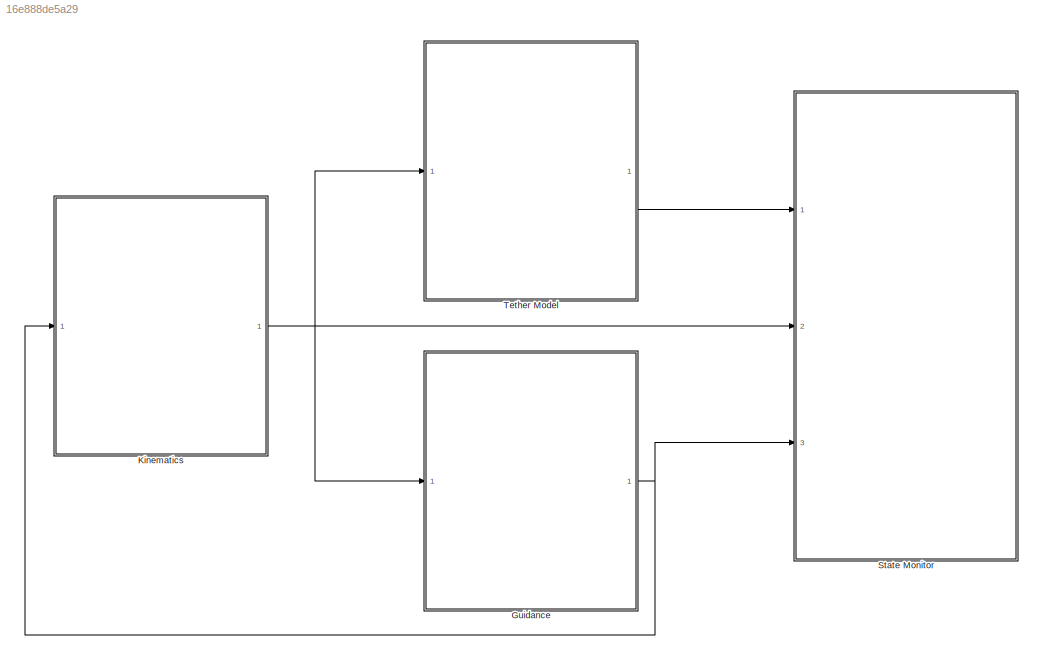
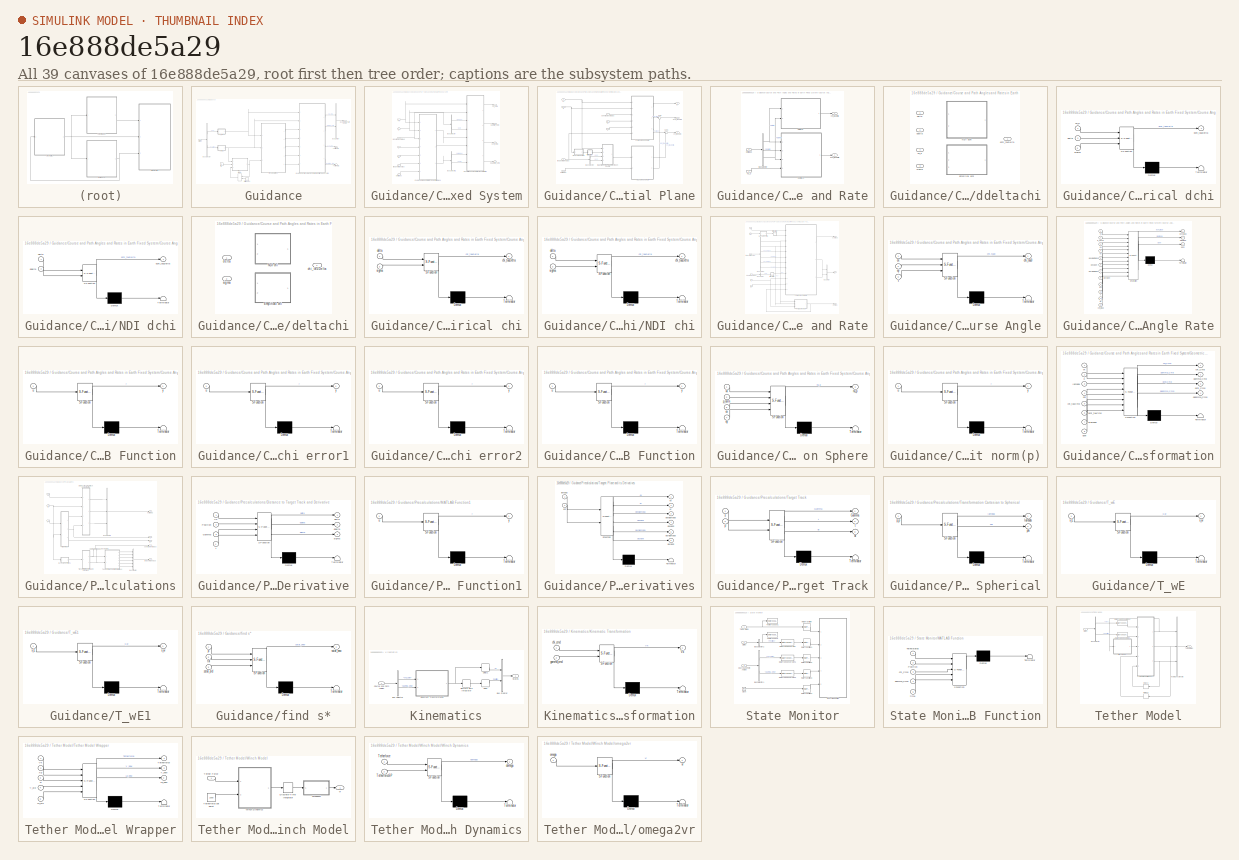
[diagram: thumbnail index - all 39 canvases of the model, root first then tree order]
MODEL slx_16e888de5a29
KIND model
CONFIG AbsTol = auto
CONFIG EnableMultiTasking = off
CONFIG FixedStep = 0.01
CONFIG MaxStep = auto
CONFIG MinStep = auto
CONFIG PreLoadFcn = clc\nclear all\nclose all\n\n[guidance,tethermodel,NDI_Mode]=settings();\n\nNDI = Simulink.Variant('NDI_Mode == 1');\nEmpirical = Simulink.Variant('NDI_Mode == 0');\n\nNDI_d = Simulink.Variant('NDI_Mode == 1');\nEmpirical_d = Simulink.Variant('NDI_Mode == 0');\n
CONFIG RelTol = 1e-3
CONFIG SampleTimeConstraint = Unconstrained
CONFIG Solver = FixedStepAuto
CONFIG SolverName = FixedStepAuto
CONFIG StartTime = 0.0
CONFIG StopTime = 40
BLOCK [SubSystem] Guidance
  Ports = [1, 1]
  RequestExecContextInheritance = off
BLOCK [BusCreator] Guidance/Bus Creator
  DisplayOption = bar
  InheritFromInputs = on
  Inputs = 2
  Ports = [2, 1]
BLOCK [BusSelector] Guidance/Bus Selector
  OutputAsBus = off
  OutputSignals = Vk,Position
  Ports = [1, 2]
BLOCK [Outport] Guidance/Course and Path Angles
  IconDisplay = Port number
BLOCK [SubSystem] Guidance/Course and Path Angles and Rates in Earth Fixed System
  Ports = [7, 4]
  RequestExecContextInheritance = off
BLOCK [BusSelector] Guidance/Course and Path Angles and Rates in Earth Fixed System/Bus Selector
  OutputAsBus = off
  OutputSignals = lambda,phi
  Ports = [1, 2]
BLOCK [BusSelector] Guidance/Course and Path Angles and Rates in Earth Fixed System/Bus Selector1
  OutputAsBus = off
  OutputSignals = dlambda,dphi
  Ports = [1, 2]
BLOCK [SubSystem] Guidance/Course and Path Angles and Rates in Earth Fixed System/Course Angle and Rate in Tangential Plane
  Ports = [7, 3]
  RequestExecContextInheritance = off
BLOCK [BusSelector] Guidance/Course and Path Angles and Rates in Earth Fixed System/Course Angle and Rate in Tangential Plane/Bus Selector
  OutputAsBus = off
  OutputSignals = ex,ey
  Ports = [1, 2]
BLOCK [SubSystem] Guidance/Course and Path Angles and Rates in Earth Fixed System/Course Angle and Rate in Tangential Plane/FB Course and Rate
  Ports = [2, 2]
  RequestExecContextInheritance = off
BLOCK [BusSelector] Guidance/Course and Path Angles and Rates in Earth Fixed System/Course Angle and Rate in Tangential Plane/FB Course and Rate/Bus Selector
  OutputAsBus = off
  OutputSignals = delta,ddelta,sigma
  Ports = [1, 3]
BLOCK [Outport] Guidance/Course and Path Angles and Rates in Earth Fixed System/Course Angle and Rate in Tangential Plane/FB Course and Rate/chi_tauDelta
  IconDisplay = Port number
BLOCK [Outport] Guidance/Course and Path Angles and Rates in Earth Fixed System/Course Angle and Rate in Tangential Plane/FB Course and Rate/dchi_tauDelta
  IconDisplay = Port number
  Port = 2
BLOCK [SubSystem] Guidance/Course and Path Angles and Rates in Earth Fixed System/Course Angle and Rate in Tangential Plane/FB Course and Rate/ddeltachi
  Ports = [4, 1]
  RequestExecContextInheritance = off
  Variant = on
BLOCK [SubSystem] Guidance/Course and Path Angles and Rates in Earth Fixed System/Course Angle and Rate in Tangential Plane/FB Course and Rate/ddeltachi/Empirical dchi
  ErrorFcn = Stateflow.Translate.translate
  PermitHierarchicalResolution = ExplicitOnly
  Ports = [3, 1]
  RequestExecContextInheritance = off
  SFBlockType = MATLAB Function
  TreatAsAtomicUnit = on
  VariantControl = Empirical_d
BLOCK [Demux] Guidance/Course and Path Angles and Rates in Earth Fixed System/Course Angle and Rate in Tangential Plane/FB Course and Rate/ddeltachi/Empirical dchi/ Demux 
  Outputs = 1
  Ports = [1, 1]
BLOCK [S-Function] Guidance/Course and Path Angles and Rates in Earth Fixed System/Course Angle and Rate in Tangential Plane/FB Course and Rate/ddeltachi/Empirical dchi/ SFunction 
  EnableBusSupport = on
  FunctionName = sf_sfun
  Parameters = guidance
  PortCounts = [3 2]
  Ports = [3, 2]
  SFcnIsStateOwnerBlock = off
  SFunctionDeploymentMode = off
  Tag = Stateflow S-Function simulink_model 16
BLOCK [Terminator] Guidance/Course and Path Angles and Rates in Earth Fixed System/Course Angle and Rate in Tangential Plane/FB Course and Rate/ddeltachi/Empirical dchi/ Terminator 
BLOCK [Outport] Guidance/Course and Path Angles and Rates in Earth Fixed System/Course Angle and Rate in Tangential Plane/FB Course and Rate/ddeltachi/Empirical dchi/dchi_tauDelta
  IconDisplay = Port number
BLOCK [Inport] Guidance/Course and Path Angles and Rates in Earth Fixed System/Course Angle and Rate in Tangential Plane/FB Course and Rate/ddeltachi/Empirical dchi/delta
  IconDisplay = Port number
  Port = 2
BLOCK [Inport] Guidance/Course and Path Angles and Rates in Earth Fixed System/Course Angle and Rate in Tangential Plane/FB Course and Rate/ddeltachi/Empirical dchi/nu_p
  IconDisplay = Port number
BLOCK [Inport] Guidance/Course and Path Angles and Rates in Earth Fixed System/Course Angle and Rate in Tangential Plane/FB Course and Rate/ddeltachi/Empirical dchi/sigma
  IconDisplay = Port number
  Port = 3
BLOCK [SubSystem] Guidance/Course and Path Angles and Rates in Earth Fixed System/Course Angle and Rate in Tangential Plane/FB Course and Rate/ddeltachi/NDI dchi
  ErrorFcn = Stateflow.Translate.translate
  PermitHierarchicalResolution = ExplicitOnly
  Ports = [2, 1]
  RequestExecContextInheritance = off
  SFBlockType = MATLAB Function
  TreatAsAtomicUnit = on
  VariantControl = NDI_d
BLOCK [Demux] Guidance/Course and Path Angles and Rates in Earth Fixed System/Course Angle and Rate in Tangential Plane/FB Course and Rate/ddeltachi/NDI dchi/ Demux 
  Outputs = 1
  Ports = [1, 1]
BLOCK [S-Function] Guidance/Course and Path Angles and Rates in Earth Fixed System/Course Angle and Rate in Tangential Plane/FB Course and Rate/ddeltachi/NDI dchi/ SFunction 
  EnableBusSupport = on
  FunctionName = sf_sfun
  Parameters = guidance
  PortCounts = [2 2]
  Ports = [2, 2]
  SFcnIsStateOwnerBlock = off
  SFunctionDeploymentMode = off
  Tag = Stateflow S-Function simulink_model 17
BLOCK [Terminator] Guidance/Course and Path Angles and Rates in Earth Fixed System/Course Angle and Rate in Tangential Plane/FB Course and Rate/ddeltachi/NDI dchi/ Terminator 
BLOCK [Outport] Guidance/Course and Path Angles and Rates in Earth Fixed System/Course Angle and Rate in Tangential Plane/FB Course and Rate/ddeltachi/NDI dchi/dchi_tauDelta
  IconDisplay = Port number
BLOCK [Inport] Guidance/Course and Path Angles and Rates in Earth Fixed System/Course Angle and Rate in Tangential Plane/FB Course and Rate/ddeltachi/NDI dchi/ddelta
  IconDisplay = Port number
  Port = 2
BLOCK [Inport] Guidance/Course and Path Angles and Rates in Earth Fixed System/Course Angle and Rate in Tangential Plane/FB Course and Rate/ddeltachi/NDI dchi/delta
  IconDisplay = Port number
BLOCK [Outport] Guidance/Course and Path Angles and Rates in Earth Fixed System/Course Angle and Rate in Tangential Plane/FB Course and Rate/ddeltachi/dchi_tauDelta
  IconDisplay = Port number
BLOCK [Inport] Guidance/Course and Path Angles and Rates in Earth Fixed System/Course Angle and Rate in Tangential Plane/FB Course and Rate/ddeltachi/ddelta
  IconDisplay = Port number
  Port = 2
BLOCK [Inport] Guidance/Course and Path Angles and Rates in Earth Fixed System/Course Angle and Rate in Tangential Plane/FB Course and Rate/ddeltachi/delta
  IconDisplay = Port number
BLOCK [Inport] Guidance/Course and Path Angles and Rates in Earth Fixed System/Course Angle and Rate in Tangential Plane/FB Course and Rate/ddeltachi/nu_p
  IconDisplay = Port number
  Port = 4
BLOCK [Inport] Guidance/Course and Path Angles and Rates in Earth Fixed System/Course Angle and Rate in Tangential Plane/FB Course and Rate/ddeltachi/sigma
  IconDisplay = Port number
  Port = 3
BLOCK [Inport] Guidance/Course and Path Angles and Rates in Earth Fixed System/Course Angle and Rate in Tangential Plane/FB Course and Rate/delta Bus
  IconDisplay = Port number
  Port = 2
BLOCK [SubSystem] Guidance/Course and Path Angles and Rates in Earth Fixed System/Course Angle and Rate in Tangential Plane/FB Course and Rate/deltachi
  Ports = [2, 1]
  RequestExecContextInheritance = off
  Variant = on
BLOCK [SubSystem] Guidance/Course and Path Angles and Rates in Earth Fixed System/Course Angle and Rate in Tangential Plane/FB Course and Rate/deltachi/Empirical chi
  ErrorFcn = Stateflow.Translate.translate
  PermitHierarchicalResolution = ExplicitOnly
  Ports = [2, 1]
  RequestExecContextInheritance = off
  SFBlockType = MATLAB Function
  TreatAsAtomicUnit = on
  VariantControl = Empirical
BLOCK [Demux] Guidance/Course and Path Angles and Rates in Earth Fixed System/Course Angle and Rate in Tangential Plane/FB Course and Rate/deltachi/Empirical chi/ Demux 
  Outputs = 1
  Ports = [1, 1]
BLOCK [S-Function] Guidance/Course and Path Angles and Rates in Earth Fixed System/Course Angle and Rate in Tangential Plane/FB Course and Rate/deltachi/Empirical chi/ SFunction 
  EnableBusSupport = on
  FunctionName = sf_sfun
  Parameters = guidance
  PortCounts = [2 2]
  Ports = [2, 2]
  SFcnIsStateOwnerBlock = off
  SFunctionDeploymentMode = off
  Tag = Stateflow S-Function simulink_model 18
BLOCK [Terminator] Guidance/Course and Path Angles and Rates in Earth Fixed System/Course Angle and Rate in Tangential Plane/FB Course and Rate/deltachi/Empirical chi/ Terminator 
BLOCK [Outport] Guidance/Course and Path Angles and Rates in Earth Fixed System/Course Angle and Rate in Tangential Plane/FB Course and Rate/deltachi/Empirical chi/chi_tauDelta
  IconDisplay = Port number
BLOCK [Inport] Guidance/Course and Path Angles and Rates in Earth Fixed System/Course Angle and Rate in Tangential Plane/FB Course and Rate/deltachi/Empirical chi/delta
  IconDisplay = Port number
BLOCK [Inport] Guidance/Course and Path Angles and Rates in Earth Fixed System/Course Angle and Rate in Tangential Plane/FB Course and Rate/deltachi/Empirical chi/sigma
  IconDisplay = Port number
  Port = 2
BLOCK [SubSystem] Guidance/Course and Path Angles and Rates in Earth Fixed System/Course Angle and Rate in Tangential Plane/FB Course and Rate/deltachi/NDI chi
  ErrorFcn = Stateflow.Translate.translate
  PermitHierarchicalResolution = ExplicitOnly
  Ports = [2, 1]
  RequestExecContextInheritance = off
  SFBlockType = MATLAB Function
  TreatAsAtomicUnit = on
  VariantControl = NDI
BLOCK [Demux] Guidance/Course and Path Angles and Rates in Earth Fixed System/Course Angle and Rate in Tangential Plane/FB Course and Rate/deltachi/NDI chi/ Demux 
  Outputs = 1
  Ports = [1, 1]
BLOCK [S-Function] Guidance/Course and Path Angles and Rates in Earth Fixed System/Course Angle and Rate in Tangential Plane/FB Course and Rate/deltachi/NDI chi/ SFunction 
  EnableBusSupport = on
  FunctionName = sf_sfun
  Parameters = guidance
  PortCounts = [2 2]
  Ports = [2, 2]
  SFcnIsStateOwnerBlock = off
  SFunctionDeploymentMode = off
  Tag = Stateflow S-Function simulink_model 19
BLOCK [Terminator] Guidance/Course and Path Angles and Rates in Earth Fixed System/Course Angle and Rate in Tangential Plane/FB Course and Rate/deltachi/NDI chi/ Terminator 
BLOCK [Outport] Guidance/Course and Path Angles and Rates in Earth Fixed System/Course Angle and Rate in Tangential Plane/FB Course and Rate/deltachi/NDI chi/chi_tauDelta
  IconDisplay = Port number
BLOCK [Inport] Guidance/Course and Path Angles and Rates in Earth Fixed System/Course Angle and Rate in Tangential Plane/FB Course and Rate/deltachi/NDI chi/delta
  IconDisplay = Port number
BLOCK [Inport] Guidance/Course and Path Angles and Rates in Earth Fixed System/Course Angle and Rate in Tangential Plane/FB Course and Rate/deltachi/NDI chi/sigma
  IconDisplay = Port number
  Port = 2
BLOCK [Outport] Guidance/Course and Path Angles and Rates in Earth Fixed System/Course Angle and Rate in Tangential Plane/FB Course and Rate/deltachi/chi_tauDelta
  IconDisplay = Port number
BLOCK [Inport] Guidance/Course and Path Angles and Rates in Earth Fixed System/Course Angle and Rate in Tangential Plane/FB Course and Rate/deltachi/delta
  IconDisplay = Port number
BLOCK [Inport] Guidance/Course and Path Angles and Rates in Earth Fixed System/Course Angle and Rate in Tangential Plane/FB Course and Rate/deltachi/sigma
  IconDisplay = Port number
  Port = 2
BLOCK [Inport] Guidance/Course and Path Angles and Rates in Earth Fixed System/Course Angle and Rate in Tangential Plane/FB Course and Rate/nu_p
  IconDisplay = Port number
BLOCK [SubSystem] Guidance/Course and Path Angles and Rates in Earth Fixed System/Course Angle and Rate in Tangential Plane/FFW Course and Rate
  Ports = [6, 3]
  RequestExecContextInheritance = off
BLOCK [BusCreator] Guidance/Course and Path Angles and Rates in Earth Fixed System/Course Angle and Rate in Tangential Plane/FFW Course and Rate/Bus Creator
  DisplayOption = bar
  InheritFromInputs = on
  Inputs = 2
  Ports = [2, 1]
BLOCK [BusSelector] Guidance/Course and Path Angles and Rates in Earth Fixed System/Course Angle and Rate in Tangential Plane/FFW Course and Rate/Bus Selector
  OutputAsBus = off
  OutputSignals = phi
  Ports = [1, 1]
BLOCK [BusSelector] Guidance/Course and Path Angles and Rates in Earth Fixed System/Course Angle and Rate in Tangential Plane/FFW Course and Rate/Bus Selector1
  OutputAsBus = off
  OutputSignals = ex,ey,dexdlambda,dexdphi,deydlambda,deydphi
  Ports = [1, 6]
BLOCK [SubSystem] Guidance/Course and Path Angles and Rates in Earth Fixed System/Course Angle and Rate in Tangential Plane/FFW Course and Rate/FFW Course Angle
  ErrorFcn = Stateflow.Translate.translate
  PermitHierarchicalResolution = ExplicitOnly
  Ports = [3, 1]
  RequestExecContextInheritance = off
  SFBlockType = MATLAB Function
  TreatAsAtomicUnit = on
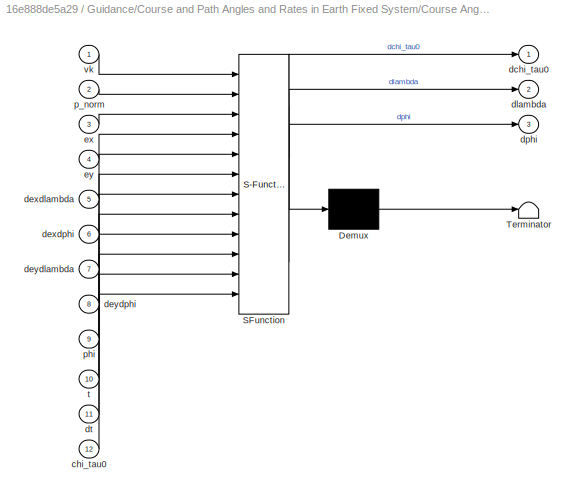
BLOCK [SubSystem] Guidance/Course and Path Angles and Rates in Earth Fixed System/Course Angle and Rate in Tangential Plane/FFW Course and Rate/FFW Course Angle Rate
  ErrorFcn = Stateflow.Translate.translate
  PermitHierarchicalResolution = ExplicitOnly
  Ports = [12, 3]
  RequestExecContextInheritance = off
  SFBlockType = MATLAB Function
  TreatAsAtomicUnit = on
BLOCK [Demux] Guidance/Course and Path Angles and Rates in Earth Fixed System/Course Angle and Rate in Tangential Plane/FFW Course and Rate/FFW Course Angle Rate/ Demux 
  Outputs = 1
  Ports = [1, 1]
BLOCK [S-Function] Guidance/Course and Path Angles and Rates in Earth Fixed System/Course Angle and Rate in Tangential Plane/FFW Course and Rate/FFW Course Angle Rate/ SFunction 
  EnableBusSupport = on
  FunctionName = sf_sfun
  PortCounts = [12 4]
  Ports = [12, 4]
  SFcnIsStateOwnerBlock = off
  SFunctionDeploymentMode = off
  Tag = Stateflow S-Function simulink_model 21
BLOCK [Terminator] Guidance/Course and Path Angles and Rates in Earth Fixed System/Course Angle and Rate in Tangential Plane/FFW Course and Rate/FFW Course Angle Rate/ Terminator 
BLOCK [Inport] Guidance/Course and Path Angles and Rates in Earth Fixed System/Course Angle and Rate in Tangential Plane/FFW Course and Rate/FFW Course Angle Rate/chi_tau0
  IconDisplay = Port number
  Port = 12
BLOCK [Outport] Guidance/Course and Path Angles and Rates in Earth Fixed System/Course Angle and Rate in Tangential Plane/FFW Course and Rate/FFW Course Angle Rate/dchi_tau0
  IconDisplay = Port number
BLOCK [Inport] Guidance/Course and Path Angles and Rates in Earth Fixed System/Course Angle and Rate in Tangential Plane/FFW Course and Rate/FFW Course Angle Rate/dexdlambda
  IconDisplay = Port number
  Port = 5
BLOCK [Inport] Guidance/Course and Path Angles and Rates in Earth Fixed System/Course Angle and Rate in Tangential Plane/FFW Course and Rate/FFW Course Angle Rate/dexdphi
  IconDisplay = Port number
  Port = 6
BLOCK [Inport] Guidance/Course and Path Angles and Rates in Earth Fixed System/Course Angle and Rate in Tangential Plane/FFW Course and Rate/FFW Course Angle Rate/deydlambda
  IconDisplay = Port number
  Port = 7
BLOCK [Inport] Guidance/Course and Path Angles and Rates in Earth Fixed System/Course Angle and Rate in Tangential Plane/FFW Course and Rate/FFW Course Angle Rate/deydphi
  IconDisplay = Port number
  Port = 8
BLOCK [Outport] Guidance/Course and Path Angles and Rates in Earth Fixed System/Course Angle and Rate in Tangential Plane/FFW Course and Rate/FFW Course Angle Rate/dlambda
  IconDisplay = Port number
  Port = 2
BLOCK [Outport] Guidance/Course and Path Angles and Rates in Earth Fixed System/Course Angle and Rate in Tangential Plane/FFW Course and Rate/FFW Course Angle Rate/dphi
  IconDisplay = Port number
  Port = 3
BLOCK [Inport] Guidance/Course and Path Angles and Rates in Earth Fixed System/Course Angle and Rate in Tangential Plane/FFW Course and Rate/FFW Course Angle Rate/dt
  IconDisplay = Port number
  Port = 11
BLOCK [Inport] Guidance/Course and Path Angles and Rates in Earth Fixed System/Course Angle and Rate in Tangential Plane/FFW Course and Rate/FFW Course Angle Rate/ex
  IconDisplay = Port number
  Port = 3
BLOCK [Inport] Guidance/Course and Path Angles and Rates in Earth Fixed System/Course Angle and Rate in Tangential Plane/FFW Course and Rate/FFW Course Angle Rate/ey
  IconDisplay = Port number
  Port = 4
BLOCK [Inport] Guidance/Course and Path Angles and Rates in Earth Fixed System/Course Angle and Rate in Tangential Plane/FFW Course and Rate/FFW Course Angle Rate/p_norm
  IconDisplay = Port number
  Port = 2
BLOCK [Inport] Guidance/Course and Path Angles and Rates in Earth Fixed System/Course Angle and Rate in Tangential Plane/FFW Course and Rate/FFW Course Angle Rate/phi
  IconDisplay = Port number
  Port = 9
BLOCK [Inport] Guidance/Course and Path Angles and Rates in Earth Fixed System/Course Angle and Rate in Tangential Plane/FFW Course and Rate/FFW Course Angle Rate/t
  IconDisplay = Port number
  Port = 10
BLOCK [Inport] Guidance/Course and Path Angles and Rates in Earth Fixed System/Course Angle and Rate in Tangential Plane/FFW Course and Rate/FFW Course Angle Rate/vk
  IconDisplay = Port number
BLOCK [Demux] Guidance/Course and Path Angles and Rates in Earth Fixed System/Course Angle and Rate in Tangential Plane/FFW Course and Rate/FFW Course Angle/ Demux 
  Outputs = 1
  Ports = [1, 1]
BLOCK [S-Function] Guidance/Course and Path Angles and Rates in Earth Fixed System/Course Angle and Rate in Tangential Plane/FFW Course and Rate/FFW Course Angle/ SFunction 
  EnableBusSupport = on
  FunctionName = sf_sfun
  PortCounts = [3 2]
  Ports = [3, 2]
  SFcnIsStateOwnerBlock = off
  SFunctionDeploymentMode = off
  Tag = Stateflow S-Function simulink_model 20
BLOCK [Terminator] Guidance/Course and Path Angles and Rates in Earth Fixed System/Course Angle and Rate in Tangential Plane/FFW Course and Rate/FFW Course Angle/ Terminator 
BLOCK [Outport] Guidance/Course and Path Angles and Rates in Earth Fixed System/Course Angle and Rate in Tangential Plane/FFW Course and Rate/FFW Course Angle/chi_tau0
  IconDisplay = Port number
BLOCK [Inport] Guidance/Course and Path Angles and Rates in Earth Fixed System/Course Angle and Rate in Tangential Plane/FFW Course and Rate/FFW Course Angle/ex
  IconDisplay = Port number
BLOCK [Inport] Guidance/Course and Path Angles and Rates in Earth Fixed System/Course Angle and Rate in Tangential Plane/FFW Course and Rate/FFW Course Angle/ey
  IconDisplay = Port number
  Port = 2
BLOCK [Inport] Guidance/Course and Path Angles and Rates in Earth Fixed System/Course Angle and Rate in Tangential Plane/FFW Course and Rate/FFW Course Angle/t
  IconDisplay = Port number
  Port = 3
BLOCK [SubSystem] Guidance/Course and Path Angles and Rates in Earth Fixed System/Course Angle and Rate in Tangential Plane/FFW Course and Rate/MATLAB Function
  ErrorFcn = Stateflow.Translate.translate
  PermitHierarchicalResolution = ExplicitOnly
  Ports = [1, 1]
  RequestExecContextInheritance = off
  SFBlockType = MATLAB Function
  TreatAsAtomicUnit = on
BLOCK [Demux] Guidance/Course and Path Angles and Rates in Earth Fixed System/Course Angle and Rate in Tangential Plane/FFW Course and Rate/MATLAB Function/ Demux 
  Outputs = 1
  Ports = [1, 1]
BLOCK [S-Function] Guidance/Course and Path Angles and Rates in Earth Fixed System/Course Angle and Rate in Tangential Plane/FFW Course and Rate/MATLAB Function/ SFunction 
  EnableBusSupport = on
  FunctionName = sf_sfun
  PortCounts = [1 2]
  Ports = [1, 2]
  SFcnIsStateOwnerBlock = off
  SFunctionDeploymentMode = off
  Tag = Stateflow S-Function simulink_model 26
BLOCK [Terminator] Guidance/Course and Path Angles and Rates in Earth Fixed System/Course Angle and Rate in Tangential Plane/FFW Course and Rate/MATLAB Function/ Terminator 
BLOCK [Inport] Guidance/Course and Path Angles and Rates in Earth Fixed System/Course Angle and Rate in Tangential Plane/FFW Course and Rate/MATLAB Function/u
  IconDisplay = Port number
BLOCK [Outport] Guidance/Course and Path Angles and Rates in Earth Fixed System/Course Angle and Rate in Tangential Plane/FFW Course and Rate/MATLAB Function/y
  IconDisplay = Port number
BLOCK [Outport] Guidance/Course and Path Angles and Rates in Earth Fixed System/Course Angle and Rate in Tangential Plane/FFW Course and Rate/chi_tau0
  IconDisplay = Port number
  Port = 3
BLOCK [Outport] Guidance/Course and Path Angles and Rates in Earth Fixed System/Course Angle and Rate in Tangential Plane/FFW Course and Rate/dchi_tau0
  IconDisplay = Port number
  Port = 2
BLOCK [Outport] Guidance/Course and Path Angles and Rates in Earth Fixed System/Course Angle and Rate in Tangential Plane/FFW Course and Rate/dr
  IconDisplay = Port number
BLOCK [Inport] Guidance/Course and Path Angles and Rates in Earth Fixed System/Course Angle and Rate in Tangential Plane/FFW Course and Rate/dt
  IconDisplay = Port number
  Port = 4
BLOCK [SubSystem] Guidance/Course and Path Angles and Rates in Earth Fixed System/Course Angle and Rate in Tangential Plane/FFW Course and Rate/limit chi error1
  ErrorFcn = Stateflow.Translate.translate
  PermitHierarchicalResolution = ExplicitOnly
  Ports = [1, 1]
  RequestExecContextInheritance = off
  SFBlockType = MATLAB Function
  TreatAsAtomicUnit = on
BLOCK [Demux] Guidance/Course and Path Angles and Rates in Earth Fixed System/Course Angle and Rate in Tangential Plane/FFW Course and Rate/limit chi error1/ Demux 
  Outputs = 1
  Ports = [1, 1]
BLOCK [S-Function] Guidance/Course and Path Angles and Rates in Earth Fixed System/Course Angle and Rate in Tangential Plane/FFW Course and Rate/limit chi error1/ SFunction 
  EnableBusSupport = on
  FunctionName = sf_sfun
  PortCounts = [1 2]
  Ports = [1, 2]
  SFcnIsStateOwnerBlock = off
  SFunctionDeploymentMode = off
  Tag = Stateflow S-Function simulink_model 27
BLOCK [Terminator] Guidance/Course and Path Angles and Rates in Earth Fixed System/Course Angle and Rate in Tangential Plane/FFW Course and Rate/limit chi error1/ Terminator 
BLOCK [Inport] Guidance/Course and Path Angles and Rates in Earth Fixed System/Course Angle and Rate in Tangential Plane/FFW Course and Rate/limit chi error1/u
  IconDisplay = Port number
BLOCK [Outport] Guidance/Course and Path Angles and Rates in Earth Fixed System/Course Angle and Rate in Tangential Plane/FFW Course and Rate/limit chi error1/y
  IconDisplay = Port number
BLOCK [SubSystem] Guidance/Course and Path Angles and Rates in Earth Fixed System/Course Angle and Rate in Tangential Plane/FFW Course and Rate/limit chi error2
  ErrorFcn = Stateflow.Translate.translate
  PermitHierarchicalResolution = ExplicitOnly
  Ports = [1, 1]
  RequestExecContextInheritance = off
  SFBlockType = MATLAB Function
  TreatAsAtomicUnit = on
BLOCK [Demux] Guidance/Course and Path Angles and Rates in Earth Fixed System/Course Angle and Rate in Tangential Plane/FFW Course and Rate/limit chi error2/ Demux 
  Outputs = 1
  Ports = [1, 1]
BLOCK [S-Function] Guidance/Course and Path Angles and Rates in Earth Fixed System/Course Angle and Rate in Tangential Plane/FFW Course and Rate/limit chi error2/ SFunction 
  EnableBusSupport = on
  FunctionName = sf_sfun
  PortCounts = [1 2]
  Ports = [1, 2]
  SFcnIsStateOwnerBlock = off
  SFunctionDeploymentMode = off
  Tag = Stateflow S-Function simulink_model 35
BLOCK [Terminator] Guidance/Course and Path Angles and Rates in Earth Fixed System/Course Angle and Rate in Tangential Plane/FFW Course and Rate/limit chi error2/ Terminator 
BLOCK [Inport] Guidance/Course and Path Angles and Rates in Earth Fixed System/Course Angle and Rate in Tangential Plane/FFW Course and Rate/limit chi error2/u
  IconDisplay = Port number
BLOCK [Outport] Guidance/Course and Path Angles and Rates in Earth Fixed System/Course Angle and Rate in Tangential Plane/FFW Course and Rate/limit chi error2/y
  IconDisplay = Port number
BLOCK [Inport] Guidance/Course and Path Angles and Rates in Earth Fixed System/Course Angle and Rate in Tangential Plane/FFW Course and Rate/p
  IconDisplay = Port number
  Port = 2
BLOCK [Inport] Guidance/Course and Path Angles and Rates in Earth Fixed System/Course Angle and Rate in Tangential Plane/FFW Course and Rate/spherical coord bus
  IconDisplay = Port number
  Port = 3
BLOCK [Inport] Guidance/Course and Path Angles and Rates in Earth Fixed System/Course Angle and Rate in Tangential Plane/FFW Course and Rate/t
  IconDisplay = Port number
  Port = 5
BLOCK [Inport] Guidance/Course and Path Angles and Rates in Earth Fixed System/Course Angle and Rate in Tangential Plane/FFW Course and Rate/tangent plane Bus
  IconDisplay = Port number
  Port = 6
BLOCK [Inport] Guidance/Course and Path Angles and Rates in Earth Fixed System/Course Angle and Rate in Tangential Plane/FFW Course and Rate/vk
  IconDisplay = Port number
BLOCK [SubSystem] Guidance/Course and Path Angles and Rates in Earth Fixed System/Course Angle and Rate in Tangential Plane/MATLAB Function
  ErrorFcn = Stateflow.Translate.translate
  PermitHierarchicalResolution = ExplicitOnly
  Ports = [1, 1]
  RequestExecContextInheritance = off
  SFBlockType = MATLAB Function
  TreatAsAtomicUnit = on
BLOCK [Demux] Guidance/Course and Path Angles and Rates in Earth Fixed System/Course Angle and Rate in Tangential Plane/MATLAB Function/ Demux 
  Outputs = 1
  Ports = [1, 1]
BLOCK [S-Function] Guidance/Course and Path Angles and Rates in Earth Fixed System/Course Angle and Rate in Tangential Plane/MATLAB Function/ SFunction 
  EnableBusSupport = on
  FunctionName = sf_sfun
  PortCounts = [1 2]
  Ports = [1, 2]
  SFcnIsStateOwnerBlock = off
  SFunctionDeploymentMode = off
  Tag = Stateflow S-Function simulink_model 3
BLOCK [Terminator] Guidance/Course and Path Angles and Rates in Earth Fixed System/Course Angle and Rate in Tangential Plane/MATLAB Function/ Terminator 
BLOCK [Inport] Guidance/Course and Path Angles and Rates in Earth Fixed System/Course Angle and Rate in Tangential Plane/MATLAB Function/u
  IconDisplay = Port number
BLOCK [Outport] Guidance/Course and Path Angles and Rates in Earth Fixed System/Course Angle and Rate in Tangential Plane/MATLAB Function/y
  IconDisplay = Port number
BLOCK [SubSystem] Guidance/Course and Path Angles and Rates in Earth Fixed System/Course Angle and Rate in Tangential Plane/Magnitude of vk_tau projected on Sphere
  ErrorFcn = Stateflow.Translate.translate
  PermitHierarchicalResolution = ExplicitOnly
  Ports = [4, 1]
  RequestExecContextInheritance = off
  SFBlockType = MATLAB Function
  TreatAsAtomicUnit = on
BLOCK [Demux] Guidance/Course and Path Angles and Rates in Earth Fixed System/Course Angle and Rate in Tangential Plane/Magnitude of vk_tau projected on Sphere/ Demux 
  Outputs = 1
  Ports = [1, 1]
BLOCK [S-Function] Guidance/Course and Path Angles and Rates in Earth Fixed System/Course Angle and Rate in Tangential Plane/Magnitude of vk_tau projected on Sphere/ SFunction 
  EnableBusSupport = on
  FunctionName = sf_sfun
  PortCounts = [4 2]
  Ports = [4, 2]
  SFcnIsStateOwnerBlock = off
  SFunctionDeploymentMode = off
  Tag = Stateflow S-Function simulink_model 4
BLOCK [Terminator] Guidance/Course and Path Angles and Rates in Earth Fixed System/Course Angle and Rate in Tangential Plane/Magnitude of vk_tau projected on Sphere/ Terminator 
BLOCK [Inport] Guidance/Course and Path Angles and Rates in Earth Fixed System/Course Angle and Rate in Tangential Plane/Magnitude of vk_tau projected on Sphere/ex
  IconDisplay = Port number
  Port = 3
BLOCK [Inport] Guidance/Course and Path Angles and Rates in Earth Fixed System/Course Angle and Rate in Tangential Plane/Magnitude of vk_tau projected on Sphere/ey
  IconDisplay = Port number
  Port = 4
BLOCK [Outport] Guidance/Course and Path Angles and Rates in Earth Fixed System/Course Angle and Rate in Tangential Plane/Magnitude of vk_tau projected on Sphere/nu_p
  IconDisplay = Port number
BLOCK [Inport] Guidance/Course and Path Angles and Rates in Earth Fixed System/Course Angle and Rate in Tangential Plane/Magnitude of vk_tau projected on Sphere/p_norm
  IconDisplay = Port number
  Port = 2
BLOCK [Inport] Guidance/Course and Path Angles and Rates in Earth Fixed System/Course Angle and Rate in Tangential Plane/Magnitude of vk_tau projected on Sphere/vk
  IconDisplay = Port number
BLOCK [Sum] Guidance/Course and Path Angles and Rates in Earth Fixed System/Course Angle and Rate in Tangential Plane/Sum
  IconShape = round
  InputSameDT = off
  Inputs = |++
  OutDataTypeStr = Inherit: Inherit via internal rule
  Ports = [2, 1]
  SaturateOnIntegerOverflow = off
BLOCK [Sum] Guidance/Course and Path Angles and Rates in Earth Fixed System/Course Angle and Rate in Tangential Plane/Sum1
  IconShape = round
  InputSameDT = off
  Inputs = |++
  OutDataTypeStr = Inherit: Inherit via internal rule
  Ports = [2, 1]
  SaturateOnIntegerOverflow = off
BLOCK [Outport] Guidance/Course and Path Angles and Rates in Earth Fixed System/Course Angle and Rate in Tangential Plane/chi_tauCmd
  IconDisplay = Port number
BLOCK [Outport] Guidance/Course and Path Angles and Rates in Earth Fixed System/Course Angle and Rate in Tangential Plane/dchi_tauCmd
  IconDisplay = Port number
  Port = 2
BLOCK [Inport] Guidance/Course and Path Angles and Rates in Earth Fixed System/Course Angle and Rate in Tangential Plane/delta Bus
  IconDisplay = Port number
  Port = 7
BLOCK [Outport] Guidance/Course and Path Angles and Rates in Earth Fixed System/Course Angle and Rate in Tangential Plane/dr
  IconDisplay = Port number
  Port = 3
BLOCK [Inport] Guidance/Course and Path Angles and Rates in Earth Fixed System/Course Angle and Rate in Tangential Plane/dt
  IconDisplay = Port number
  Port = 5
BLOCK [SubSystem] Guidance/Course and Path Angles and Rates in Earth Fixed System/Course Angle and Rate in Tangential Plane/limit norm(p)
  ErrorFcn = Stateflow.Translate.translate
  PermitHierarchicalResolution = ExplicitOnly
  Ports = [1, 1]
  RequestExecContextInheritance = off
  SFBlockType = MATLAB Function
  TreatAsAtomicUnit = on
BLOCK [Demux] Guidance/Course and Path Angles and Rates in Earth Fixed System/Course Angle and Rate in Tangential Plane/limit norm(p)/ Demux 
  Outputs = 1
  Ports = [1, 1]
BLOCK [S-Function] Guidance/Course and Path Angles and Rates in Earth Fixed System/Course Angle and Rate in Tangential Plane/limit norm(p)/ SFunction 
  EnableBusSupport = on
  FunctionName = sf_sfun
  PortCounts = [1 2]
  Ports = [1, 2]
  SFcnIsStateOwnerBlock = off
  SFunctionDeploymentMode = off
  Tag = Stateflow S-Function simulink_model 5
BLOCK [Terminator] Guidance/Course and Path Angles and Rates in Earth Fixed System/Course Angle and Rate in Tangential Plane/limit norm(p)/ Terminator 
BLOCK [Inport] Guidance/Course and Path Angles and Rates in Earth Fixed System/Course Angle and Rate in Tangential Plane/limit norm(p)/u
  IconDisplay = Port number
BLOCK [Outport] Guidance/Course and Path Angles and Rates in Earth Fixed System/Course Angle and Rate in Tangential Plane/limit norm(p)/y
  IconDisplay = Port number
BLOCK [Inport] Guidance/Course and Path Angles and Rates in Earth Fixed System/Course Angle and Rate in Tangential Plane/p
  IconDisplay = Port number
  Port = 2
BLOCK [Inport] Guidance/Course and Path Angles and Rates in Earth Fixed System/Course Angle and Rate in Tangential Plane/spherical coord Bus
  IconDisplay = Port number
  Port = 3
BLOCK [Inport] Guidance/Course and Path Angles and Rates in Earth Fixed System/Course Angle and Rate in Tangential Plane/t
  IconDisplay = Port number
  Port = 4
BLOCK [Inport] Guidance/Course and Path Angles and Rates in Earth Fixed System/Course Angle and Rate in Tangential Plane/tangent plane Bus
  IconDisplay = Port number
  Port = 6
BLOCK [Inport] Guidance/Course and Path Angles and Rates in Earth Fixed System/Course Angle and Rate in Tangential Plane/vk
  IconDisplay = Port number
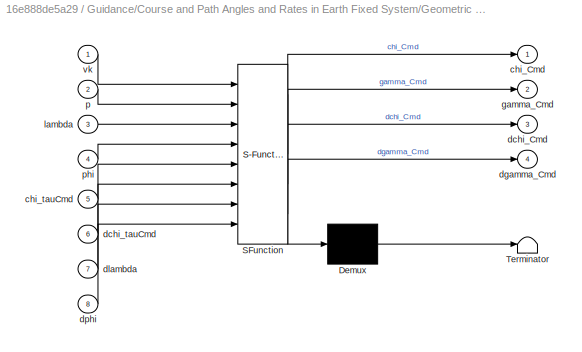
BLOCK [SubSystem] Guidance/Course and Path Angles and Rates in Earth Fixed System/Geometric and Kinematic Transformation
  ErrorFcn = Stateflow.Translate.translate
  PermitHierarchicalResolution = ExplicitOnly
  Ports = [8, 4]
  RequestExecContextInheritance = off
  SFBlockType = MATLAB Function
  TreatAsAtomicUnit = on
BLOCK [Demux] Guidance/Course and Path Angles and Rates in Earth Fixed System/Geometric and Kinematic Transformation/ Demux 
  Outputs = 1
  Ports = [1, 1]
BLOCK [S-Function] Guidance/Course and Path Angles and Rates in Earth Fixed System/Geometric and Kinematic Transformation/ SFunction 
  EnableBusSupport = on
  FunctionName = sf_sfun
  Parameters = guidance
  PortCounts = [8 5]
  Ports = [8, 5]
  SFcnIsStateOwnerBlock = off
  SFunctionDeploymentMode = off
  Tag = Stateflow S-Function simulink_model 36
BLOCK [Terminator] Guidance/Course and Path Angles and Rates in Earth Fixed System/Geometric and Kinematic Transformation/ Terminator 
BLOCK [Outport] Guidance/Course and Path Angles and Rates in Earth Fixed System/Geometric and Kinematic Transformation/chi_Cmd
  IconDisplay = Port number
BLOCK [Inport] Guidance/Course and Path Angles and Rates in Earth Fixed System/Geometric and Kinematic Transformation/chi_tauCmd
  IconDisplay = Port number
  Port = 5
BLOCK [Outport] Guidance/Course and Path Angles and Rates in Earth Fixed System/Geometric and Kinematic Transformation/dchi_Cmd
  IconDisplay = Port number
  Port = 3
BLOCK [Inport] Guidance/Course and Path Angles and Rates in Earth Fixed System/Geometric and Kinematic Transformation/dchi_tauCmd
  IconDisplay = Port number
  Port = 6
BLOCK [Outport] Guidance/Course and Path Angles and Rates in Earth Fixed System/Geometric and Kinematic Transformation/dgamma_Cmd
  IconDisplay = Port number
  Port = 4
BLOCK [Inport] Guidance/Course and Path Angles and Rates in Earth Fixed System/Geometric and Kinematic Transformation/dlambda
  IconDisplay = Port number
  Port = 7
BLOCK [Inport] Guidance/Course and Path Angles and Rates in Earth Fixed System/Geometric and Kinematic Transformation/dphi
  IconDisplay = Port number
  Port = 8
BLOCK [Outport] Guidance/Course and Path Angles and Rates in Earth Fixed System/Geometric and Kinematic Transformation/gamma_Cmd
  IconDisplay = Port number
  Port = 2
BLOCK [Inport] Guidance/Course and Path Angles and Rates in Earth Fixed System/Geometric and Kinematic Transformation/lambda
  IconDisplay = Port number
  Port = 3
BLOCK [Inport] Guidance/Course and Path Angles and Rates in Earth Fixed System/Geometric and Kinematic Transformation/p
  IconDisplay = Port number
  Port = 2
BLOCK [Inport] Guidance/Course and Path Angles and Rates in Earth Fixed System/Geometric and Kinematic Transformation/phi
  IconDisplay = Port number
  Port = 4
BLOCK [Inport] Guidance/Course and Path Angles and Rates in Earth Fixed System/Geometric and Kinematic Transformation/vk
  IconDisplay = Port number
BLOCK [Outport] Guidance/Course and Path Angles and Rates in Earth Fixed System/chi_Cmd
  IconDisplay = Port number
BLOCK [Outport] Guidance/Course and Path Angles and Rates in Earth Fixed System/dchi_Cmd
  IconDisplay = Port number
  Port = 3
BLOCK [Inport] Guidance/Course and Path Angles and Rates in Earth Fixed System/delta Bus
  IconDisplay = Port number
  Port = 7
BLOCK [Outport] Guidance/Course and Path Angles and Rates in Earth Fixed System/dgamma_Cmd
  IconDisplay = Port number
  Port = 4
BLOCK [Inport] Guidance/Course and Path Angles and Rates in Earth Fixed System/dt
  IconDisplay = Port number
  Port = 5
BLOCK [Outport] Guidance/Course and Path Angles and Rates in Earth Fixed System/gamma_Cmd
  IconDisplay = Port number
  Port = 2
BLOCK [Inport] Guidance/Course and Path Angles and Rates in Earth Fixed System/p
  IconDisplay = Port number
  Port = 2
BLOCK [Inport] Guidance/Course and Path Angles and Rates in Earth Fixed System/spherical coord Bus 
  IconDisplay = Port number
  Port = 3
BLOCK [Inport] Guidance/Course and Path Angles and Rates in Earth Fixed System/t
  IconDisplay = Port number
  Port = 4
BLOCK [Inport] Guidance/Course and Path Angles and Rates in Earth Fixed System/tangent plane Bus
  IconDisplay = Port number
  Port = 6
BLOCK [Inport] Guidance/Course and Path Angles and Rates in Earth Fixed System/vk
  IconDisplay = Port number
BLOCK [Delay] Guidance/Delay
  DelayLength = 1
  InitialCondition = 4
  InitialConditionSource = Input port
  InputPortMap = u0,p4
  Ports = [2, 1]
BLOCK [SubSystem] Guidance/Precalculations
  Ports = [3, 5]
  RequestExecContextInheritance = off
BLOCK [BusCreator] Guidance/Precalculations/Bus Creator
  DisplayOption = bar
  InheritFromInputs = on
  Inputs = 6
  Ports = [6, 1]
BLOCK [BusCreator] Guidance/Precalculations/Bus Creator1
  DisplayOption = bar
  InheritFromInputs = on
  Inputs = 2
  Ports = [2, 1]
BLOCK [BusCreator] Guidance/Precalculations/Bus Creator2
  DisplayOption = bar
  InheritFromInputs = on
  Inputs = 3
  Ports = [3, 1]
BLOCK [SubSystem] Guidance/Precalculations/Distance to Target Track and Derivative
  ErrorFcn = Stateflow.Translate.translate
  PermitHierarchicalResolution = ExplicitOnly
  Ports = [4, 3]
  RequestExecContextInheritance = off
  SFBlockType = MATLAB Function
  TreatAsAtomicUnit = on
BLOCK [Demux] Guidance/Precalculations/Distance to Target Track and Derivative/ Demux 
  Outputs = 1
  Ports = [1, 1]
BLOCK [S-Function] Guidance/Precalculations/Distance to Target Track and Derivative/ SFunction 
  EnableBusSupport = on
  FunctionName = sf_sfun
  PortCounts = [4 4]
  Ports = [4, 4]
  SFcnIsStateOwnerBlock = off
  SFunctionDeploymentMode = off
  Tag = Stateflow S-Function simulink_model 37
BLOCK [Terminator] Guidance/Precalculations/Distance to Target Track and Derivative/ Terminator 
BLOCK [Inport] Guidance/Precalculations/Distance to Target Track and Derivative/Gamma
  IconDisplay = Port number
  Port = 3
BLOCK [Inport] Guidance/Precalculations/Distance to Target Track and Derivative/Position
  IconDisplay = Port number
  Port = 2
BLOCK [Inport] Guidance/Precalculations/Distance to Target Track and Derivative/Vk
  IconDisplay = Port number
BLOCK [Outport] Guidance/Precalculations/Distance to Target Track and Derivative/ddelta
  IconDisplay = Port number
  Port = 2
BLOCK [Outport] Guidance/Precalculations/Distance to Target Track and Derivative/delta
  IconDisplay = Port number
BLOCK [Outport] Guidance/Precalculations/Distance to Target Track and Derivative/sigma
  IconDisplay = Port number
  Port = 3
BLOCK [Inport] Guidance/Precalculations/Distance to Target Track and Derivative/t
  IconDisplay = Port number
  Port = 4
BLOCK [SubSystem] Guidance/Precalculations/MATLAB Function1
  ErrorFcn = Stateflow.Translate.translate
  PermitHierarchicalResolution = ExplicitOnly
  Ports = [1, 1]
  RequestExecContextInheritance = off
  SFBlockType = MATLAB Function
  TreatAsAtomicUnit = on
BLOCK [Demux] Guidance/Precalculations/MATLAB Function1/ Demux 
  Outputs = 1
  Ports = [1, 1]
BLOCK [S-Function] Guidance/Precalculations/MATLAB Function1/ SFunction 
  EnableBusSupport = on
  FunctionName = sf_sfun
  PortCounts = [1 2]
  Ports = [1, 2]
  SFcnIsStateOwnerBlock = off
  SFunctionDeploymentMode = off
  Tag = Stateflow S-Function simulink_model 39
BLOCK [Terminator] Guidance/Precalculations/MATLAB Function1/ Terminator 
BLOCK [Inport] Guidance/Precalculations/MATLAB Function1/u
  IconDisplay = Port number
BLOCK [Outport] Guidance/Precalculations/MATLAB Function1/y
  IconDisplay = Port number
BLOCK [SubSystem] Guidance/Precalculations/Tangent Plane and its Derivatives
  ErrorFcn = Stateflow.Translate.translate
  PermitHierarchicalResolution = ExplicitOnly
  Ports = [2, 6]
  RequestExecContextInheritance = off
  SFBlockType = MATLAB Function
  TreatAsAtomicUnit = on
BLOCK [Demux] Guidance/Precalculations/Tangent Plane and its Derivatives/ Demux 
  Outputs = 1
  Ports = [1, 1]
BLOCK [S-Function] Guidance/Precalculations/Tangent Plane and its Derivatives/ SFunction 
  EnableBusSupport = on
  FunctionName = sf_sfun
  PortCounts = [2 7]
  Ports = [2, 7]
  SFcnIsStateOwnerBlock = off
  SFunctionDeploymentMode = off
  Tag = Stateflow S-Function simulink_model 42
BLOCK [Terminator] Guidance/Precalculations/Tangent Plane and its Derivatives/ Terminator 
BLOCK [Outport] Guidance/Precalculations/Tangent Plane and its Derivatives/dexdlambda
  IconDisplay = Port number
  Port = 3
BLOCK [Outport] Guidance/Precalculations/Tangent Plane and its Derivatives/dexdphi
  IconDisplay = Port number
  Port = 4
BLOCK [Outport] Guidance/Precalculations/Tangent Plane and its Derivatives/deydlambda
  IconDisplay = Port number
  Port = 5
BLOCK [Outport] Guidance/Precalculations/Tangent Plane and its Derivatives/deydphi
  IconDisplay = Port number
  Port = 6
BLOCK [Outport] Guidance/Precalculations/Tangent Plane and its Derivatives/ex
  IconDisplay = Port number
BLOCK [Outport] Guidance/Precalculations/Tangent Plane and its Derivatives/ey
  IconDisplay = Port number
  Port = 2
BLOCK [Inport] Guidance/Precalculations/Tangent Plane and its Derivatives/lambda
  IconDisplay = Port number
BLOCK [Inport] Guidance/Precalculations/Tangent Plane and its Derivatives/phi
  IconDisplay = Port number
  Port = 2
BLOCK [SubSystem] Guidance/Precalculations/Target Track
  ErrorFcn = Stateflow.Translate.translate
  PermitHierarchicalResolution = ExplicitOnly
  Ports = [2, 3]
  RequestExecContextInheritance = off
  SFBlockType = MATLAB Function
  TreatAsAtomicUnit = on
BLOCK [Demux] Guidance/Precalculations/Target Track/ Demux 
  Outputs = 1
  Ports = [1, 1]
BLOCK [S-Function] Guidance/Precalculations/Target Track/ SFunction 
  EnableBusSupport = on
  FunctionName = sf_sfun
  Parameters = guidance
  PortCounts = [2 4]
  Ports = [2, 4]
  SFcnIsStateOwnerBlock = off
  SFunctionDeploymentMode = off
  Tag = Stateflow S-Function simulink_model 43
BLOCK [Terminator] Guidance/Precalculations/Target Track/ Terminator 
BLOCK [Outport] Guidance/Precalculations/Target Track/Gamma
  IconDisplay = Port number
BLOCK [Outport] Guidance/Precalculations/Target Track/dt
  IconDisplay = Port number
  Port = 3
BLOCK [Inport] Guidance/Precalculations/Target Track/p
  IconDisplay = Port number
  Port = 2
BLOCK [Inport] Guidance/Precalculations/Target Track/s
  IconDisplay = Port number
BLOCK [Outport] Guidance/Precalculations/Target Track/t
  IconDisplay = Port number
  Port = 2
BLOCK [SubSystem] Guidance/Precalculations/Transformation Cartesian to Spherical
  ErrorFcn = Stateflow.Translate.translate
  PermitHierarchicalResolution = ExplicitOnly
  Ports = [1, 2]
  RequestExecContextInheritance = off
  SFBlockType = MATLAB Function
  TreatAsAtomicUnit = on
BLOCK [Demux] Guidance/Precalculations/Transformation Cartesian to Spherical/ Demux 
  Outputs = 1
  Ports = [1, 1]
BLOCK [S-Function] Guidance/Precalculations/Transformation Cartesian to Spherical/ SFunction 
  EnableBusSupport = on
  FunctionName = sf_sfun
  PortCounts = [1 3]
  Ports = [1, 3]
  SFcnIsStateOwnerBlock = off
  SFunctionDeploymentMode = off
  Tag = Stateflow S-Function simulink_model 44
BLOCK [Terminator] Guidance/Precalculations/Transformation Cartesian to Spherical/ Terminator 
BLOCK [Outport] Guidance/Precalculations/Transformation Cartesian to Spherical/lambda
  IconDisplay = Port number
BLOCK [Inport] Guidance/Precalculations/Transformation Cartesian to Spherical/p_p
  IconDisplay = Port number
BLOCK [Outport] Guidance/Precalculations/Transformation Cartesian to Spherical/phi
  IconDisplay = Port number
  Port = 2
BLOCK [Outport] Guidance/Precalculations/delta Bus
  IconDisplay = Port number
  Port = 5
BLOCK [Outport] Guidance/Precalculations/dt
  IconDisplay = Port number
  Port = 3
BLOCK [Inport] Guidance/Precalculations/p
  IconDisplay = Port number
  Port = 2
BLOCK [Inport] Guidance/Precalculations/s*
  IconDisplay = Port number
  Port = 3
BLOCK [Outport] Guidance/Precalculations/spherical coord Bus
  IconDisplay = Port number
BLOCK [Outport] Guidance/Precalculations/t
  IconDisplay = Port number
  Port = 2
BLOCK [Outport] Guidance/Precalculations/tangent plane Bus
  IconDisplay = Port number
  Port = 4
BLOCK [Inport] Guidance/Precalculations/vk
  IconDisplay = Port number
BLOCK [Inport] Guidance/States
  IconDisplay = Port number
BLOCK [SubSystem] Guidance/T_wE
  ErrorFcn = Stateflow.Translate.translate
  PermitHierarchicalResolution = ExplicitOnly
  Ports = [1, 1]
  RequestExecContextInheritance = off
  SFBlockType = MATLAB Function
  TreatAsAtomicUnit = on
BLOCK [Demux] Guidance/T_wE/ Demux 
  Outputs = 1
  Ports = [1, 1]
BLOCK [S-Function] Guidance/T_wE/ SFunction 
  EnableBusSupport = on
  FunctionName = sf_sfun
  Parameters = guidance
  PortCounts = [1 2]
  Ports = [1, 2]
  SFcnIsStateOwnerBlock = off
  SFunctionDeploymentMode = off
  Tag = Stateflow S-Function simulink_model 47
BLOCK [Terminator] Guidance/T_wE/ Terminator 
BLOCK [Inport] Guidance/T_wE/x_E
  IconDisplay = Port number
BLOCK [Outport] Guidance/T_wE/x_w
  IconDisplay = Port number
BLOCK [SubSystem] Guidance/T_wE1
  ErrorFcn = Stateflow.Translate.translate
  PermitHierarchicalResolution = ExplicitOnly
  Ports = [1, 1]
  RequestExecContextInheritance = off
  SFBlockType = MATLAB Function
  TreatAsAtomicUnit = on
BLOCK [Demux] Guidance/T_wE1/ Demux 
  Outputs = 1
  Ports = [1, 1]
BLOCK [S-Function] Guidance/T_wE1/ SFunction 
  EnableBusSupport = on
  FunctionName = sf_sfun
  Parameters = guidance
  PortCounts = [1 2]
  Ports = [1, 2]
  SFcnIsStateOwnerBlock = off
  SFunctionDeploymentMode = off
  Tag = Stateflow S-Function simulink_model 48
BLOCK [Terminator] Guidance/T_wE1/ Terminator 
BLOCK [Inport] Guidance/T_wE1/x_E
  IconDisplay = Port number
BLOCK [Outport] Guidance/T_wE1/x_w
  IconDisplay = Port number
BLOCK [Terminator] Guidance/Terminator
BLOCK [Terminator] Guidance/Terminator1
BLOCK [SubSystem] Guidance/find s*
  ErrorFcn = Stateflow.Translate.translate
  PermitHierarchicalResolution = ExplicitOnly
  Ports = [3, 1]
  RequestExecContextInheritance = off
  SFBlockType = MATLAB Function
  TreatAsAtomicUnit = on
BLOCK [Demux] Guidance/find s*/ Demux 
  Outputs = 1
  Ports = [1, 1]
BLOCK [S-Function] Guidance/find s*/ SFunction 
  EnableBusSupport = on
  FunctionName = sf_sfun
  Parameters = guidance
  PortCounts = [3 2]
  Ports = [3, 2]
  SFcnIsStateOwnerBlock = off
  SFunctionDeploymentMode = off
  Tag = Stateflow S-Function simulink_model 49
BLOCK [Terminator] Guidance/find s*/ Terminator 
BLOCK [Inport] Guidance/find s*/p
  IconDisplay = Port number
BLOCK [Outport] Guidance/find s*/sstar_new
  IconDisplay = Port number
BLOCK [Inport] Guidance/find s*/sstar_old
  IconDisplay = Port number
  Port = 3
BLOCK [Inport] Guidance/find s*/tol
  IconDisplay = Port number
  Port = 2
BLOCK [Constant] Guidance/initial guess
  OutDataTypeStr = single
  Value = 4
BLOCK [Constant] Guidance/tol
  OutDataTypeStr = single
  Value = 0.1
BLOCK [SubSystem] Kinematics
  Ports = [1, 1]
  RequestExecContextInheritance = off
BLOCK [BusCreator] Kinematics/Bus Creator
  DisplayOption = bar
  InheritFromInputs = on
  Inputs = 2
  Ports = [2, 1]
BLOCK [BusSelector] Kinematics/Bus Selector
  OutputAsBus = off
  OutputSignals = chi_Cmd,gamma_Cmd
  Ports = [1, 2]
BLOCK [Inport] Kinematics/Course and Path Angles
  IconDisplay = Port number
BLOCK [Delay] Kinematics/Delay
  DelayLength = 1
  InitialCondition = [0;0;-300]
  InputPortMap = u0
  Ports = [1, 1]
BLOCK [Delay] Kinematics/Delay1
  DelayLength = 1
  InitialCondition = [-60;0;0]
  InputPortMap = u0
  Ports = [1, 1]
BLOCK [DiscreteIntegrator] Kinematics/Discrete-Time Integrator
  ICPrevOutput = DiscIntNeverNeededParam
  ICPrevScaledInput = DiscIntNeverNeededParam
  InitialCondition = [0;0;-300]
  InitialConditionSetting = Auto
  OutDataTypeStr = single
  Ports = [1, 1]
  SampleTime = -1
BLOCK [SubSystem] Kinematics/Kinematic Transformation
  ErrorFcn = Stateflow.Translate.translate
  PermitHierarchicalResolution = ExplicitOnly
  Ports = [2, 1]
  RequestExecContextInheritance = off
  SFBlockType = MATLAB Function
  TreatAsAtomicUnit = on
BLOCK [Demux] Kinematics/Kinematic Transformation/ Demux 
  Outputs = 1
  Ports = [1, 1]
BLOCK [S-Function] Kinematics/Kinematic Transformation/ SFunction 
  EnableBusSupport = on
  FunctionName = sf_sfun
  Parameters = guidance
  PortCounts = [2 2]
  Ports = [2, 2]
  SFcnIsStateOwnerBlock = off
  SFunctionDeploymentMode = off
  Tag = Stateflow S-Function simulink_model 12
BLOCK [Terminator] Kinematics/Kinematic Transformation/ Terminator 
BLOCK [Outport] Kinematics/Kinematic Transformation/Vk
  IconDisplay = Port number
BLOCK [Inport] Kinematics/Kinematic Transformation/chi_cmd
  IconDisplay = Port number
BLOCK [Inport] Kinematics/Kinematic Transformation/gamma_cmd
  IconDisplay = Port number
  Port = 2
BLOCK [Outport] Kinematics/States
  IconDisplay = Port number
BLOCK [SubSystem] State Monitor
  Ports = [3]
  RequestExecContextInheritance = off
BLOCK [BusSelector] State Monitor/Bus Selector1
  OutputAsBus = off
  OutputSignals = chi_Cmd,gamma_Cmd
  Ports = [1, 2]
BLOCK [BusSelector] State Monitor/Bus Selector2
  OutputAsBus = off
  OutputSignals = Position
  Ports = [1, 1]
BLOCK [Clock] State Monitor/Clock
BLOCK [Inport] State Monitor/Course and Path Angles
  IconDisplay = Port number
  Port = 3
BLOCK [DataTypeConversion] State Monitor/Data Type Conversion
  OutDataTypeStr = double
  RndMeth = Floor
  SaturateOnIntegerOverflow = off
BLOCK [DataTypeConversion] State Monitor/Data Type Conversion1
  OutDataTypeStr = double
  RndMeth = Floor
  SaturateOnIntegerOverflow = off
BLOCK [DataTypeConversion] State Monitor/Data Type Conversion2
  OutDataTypeStr = double
  RndMeth = Floor
  SaturateOnIntegerOverflow = off
BLOCK [SubSystem] State Monitor/MATLAB Function
  ErrorFcn = Stateflow.Translate.translate
  PermitHierarchicalResolution = ExplicitOnly
  Ports = [5]
  RequestExecContextInheritance = off
  SFBlockType = MATLAB Function
  TreatAsAtomicUnit = on
BLOCK [Demux] State Monitor/MATLAB Function/ Demux 
  Outputs = 1
  Ports = [1, 1]
BLOCK [S-Function] State Monitor/MATLAB Function/ SFunction 
  EnableBusSupport = on
  FunctionName = sf_sfun
  Parameters = guidance
  PortCounts = [5 1]
  Ports = [5, 1]
  SFcnIsStateOwnerBlock = off
  SFunctionDeploymentMode = off
  Tag = Stateflow S-Function simulink_model 1
BLOCK [Terminator] State Monitor/MATLAB Function/ Terminator 
BLOCK [Inport] State Monitor/MATLAB Function/Position
  IconDisplay = Port number
  Port = 2
BLOCK [Inport] State Monitor/MATLAB Function/Tetherstates
  IconDisplay = Port number
BLOCK [Inport] State Monitor/MATLAB Function/chi_Cmd
  IconDisplay = Port number
  Port = 3
BLOCK [Inport] State Monitor/MATLAB Function/gamma_Cmd
  IconDisplay = Port number
  Port = 4
BLOCK [Inport] State Monitor/MATLAB Function/time
  IconDisplay = Port number
  Port = 5
BLOCK [RateTransition] State Monitor/Rate Transition
  OutPortSampleTime = 0.1
BLOCK [RateTransition] State Monitor/Rate Transition1
  OutPortSampleTime = 0.1
BLOCK [RateTransition] State Monitor/Rate Transition2
  OutPortSampleTime = 0.1
BLOCK [RateTransition] State Monitor/Rate Transition3
  OutPortSampleTime = 0.1
BLOCK [RateTransition] State Monitor/Rate Transition4
  OutPortSampleTime = 0.1
BLOCK [Inport] State Monitor/States
  IconDisplay = Port number
  Port = 2
BLOCK [Inport] State Monitor/Tether States
  IconDisplay = Port number
BLOCK [ToWorkspace] State Monitor/To Workspace
  FixptAsFi = on
  MaxDataPoints = inf
  Ports = [1]
  SampleTime = -1
  Save2DSignal = 3-D array (concatenate along third dimension)
  SaveFormat = Timeseries
  VariableName = Position_out
BLOCK [ToWorkspace] State Monitor/To Workspace1
  FixptAsFi = on
  MaxDataPoints = inf
  Ports = [1]
  SampleTime = -1
  Save2DSignal = 3-D array (concatenate along third dimension)
  SaveFormat = Timeseries
  VariableName = Y_out
BLOCK [SubSystem] Tether Model
  Ports = [1, 1]
  RequestExecContextInheritance = off
BLOCK [BusSelector] Tether Model/Bus Selector
  OutputAsBus = off
  OutputSignals = Vk,Position
  Ports = [1, 2]
BLOCK [DataTypeConversion] Tether Model/Data Type Conversion
  OutDataTypeStr = double
  RndMeth = Floor
  SaturateOnIntegerOverflow = off
BLOCK [DataTypeConversion] Tether Model/Data Type Conversion1
  OutDataTypeStr = double
  RndMeth = Floor
  SaturateOnIntegerOverflow = off
BLOCK [Delay] Tether Model/Delay2
  DelayLength = 1
  InitialCondition = tethermodel.L0
  InputPortMap = u0
  Ports = [1, 1]
BLOCK [Delay] Tether Model/Delay3
  DelayLength = 1
  InitialCondition = tethermodel.Y0
  InputPortMap = u0
  Ports = [1, 1]
BLOCK [Inport] Tether Model/States
  IconDisplay = Port number
BLOCK [SubSystem] Tether Model/Tether Model Wrapper
  ErrorFcn = Stateflow.Translate.translate
  PermitHierarchicalResolution = ExplicitOnly
  Ports = [5, 3]
  RequestExecContextInheritance = off
  SFBlockType = MATLAB Function
  TreatAsAtomicUnit = on
BLOCK [Demux] Tether Model/Tether Model Wrapper/ Demux 
  Outputs = 1
  Ports = [1, 1]
BLOCK [S-Function] Tether Model/Tether Model Wrapper/ SFunction 
  EnableBusSupport = on
  FunctionName = sf_sfun
  Parameters = tethermodel
  PortCounts = [5 4]
  Ports = [5, 4]
  SFcnIsStateOwnerBlock = off
  SFunctionDeploymentMode = off
  Tag = Stateflow S-Function simulink_model 7
BLOCK [Terminator] Tether Model/Tether Model Wrapper/ Terminator 
BLOCK [Outport] Tether Model/Tether Model Wrapper/L0_new
  IconDisplay = Port number
  Port = 3
BLOCK [Inport] Tether Model/Tether Model Wrapper/L0_old
  IconDisplay = Port number
  Port = 5
BLOCK [Outport] Tether Model/Tether Model Wrapper/Tetherforce
  IconDisplay = Port number
BLOCK [Inport] Tether Model/Tether Model Wrapper/Vk
  IconDisplay = Port number
BLOCK [Inport] Tether Model/Tether Model Wrapper/Xg
  IconDisplay = Port number
  Port = 2
BLOCK [Outport] Tether Model/Tether Model Wrapper/Y_new
  IconDisplay = Port number
  Port = 2
BLOCK [Inport] Tether Model/Tether Model Wrapper/Y_old
  IconDisplay = Port number
  Port = 4
BLOCK [Inport] Tether Model/Tether Model Wrapper/vr
  IconDisplay = Port number
  Port = 3
BLOCK [Outport] Tether Model/Tether States
  IconDisplay = Port number
BLOCK [Concatenate] Tether Model/Vector Concatenate
  NumInputs = 3
  Ports = [3, 1]
BLOCK [SubSystem] Tether Model/Winch Model
  Ports = [1, 1]
  RequestExecContextInheritance = off
BLOCK [DiscreteIntegrator] Tether Model/Winch Model/Discrete-Time Integrator
  ICPrevOutput = DiscIntNeverNeededParam
  ICPrevScaledInput = DiscIntNeverNeededParam
  InitialConditionSetting = Auto
  Ports = [1, 1]
  SampleTime = -1
BLOCK [Inport] Tether Model/Winch Model/Tether Force
  IconDisplay = Port number
  OutDataTypeStr = double
BLOCK [Constant] Tether Model/Winch Model/Tetherforce set point
  Value = 1000
BLOCK [SubSystem] Tether Model/Winch Model/Winch Dynamics
  ErrorFcn = Stateflow.Translate.translate
  PermitHierarchicalResolution = ExplicitOnly
  Ports = [2, 1]
  RequestExecContextInheritance = off
  SFBlockType = MATLAB Function
  TreatAsAtomicUnit = on
BLOCK [Demux] Tether Model/Winch Model/Winch Dynamics/ Demux 
  Outputs = 1
  Ports = [1, 1]
BLOCK [S-Function] Tether Model/Winch Model/Winch Dynamics/ SFunction 
  EnableBusSupport = on
  FunctionName = sf_sfun
  Parameters = tethermodel
  PortCounts = [2 2]
  Ports = [2, 2]
  SFcnIsStateOwnerBlock = off
  SFunctionDeploymentMode = off
  Tag = Stateflow S-Function simulink_model 10
BLOCK [Terminator] Tether Model/Winch Model/Winch Dynamics/ Terminator 
BLOCK [Inport] Tether Model/Winch Model/Winch Dynamics/Tetherforce
  IconDisplay = Port number
BLOCK [Inport] Tether Model/Winch Model/Winch Dynamics/TetherforceSP
  IconDisplay = Port number
  Port = 2
BLOCK [Outport] Tether Model/Winch Model/Winch Dynamics/domega
  IconDisplay = Port number
BLOCK [SubSystem] Tether Model/Winch Model/omega2vr
  ErrorFcn = Stateflow.Translate.translate
  PermitHierarchicalResolution = ExplicitOnly
  Ports = [1, 1]
  RequestExecContextInheritance = off
  SFBlockType = MATLAB Function
  TreatAsAtomicUnit = on
BLOCK [Demux] Tether Model/Winch Model/omega2vr/ Demux 
  Outputs = 1
  Ports = [1, 1]
BLOCK [S-Function] Tether Model/Winch Model/omega2vr/ SFunction 
  EnableBusSupport = on
  FunctionName = sf_sfun
  Parameters = tethermodel
  PortCounts = [1 2]
  Ports = [1, 2]
  SFcnIsStateOwnerBlock = off
  SFunctionDeploymentMode = off
  Tag = Stateflow S-Function simulink_model 2
BLOCK [Terminator] Tether Model/Winch Model/omega2vr/ Terminator 
BLOCK [Inport] Tether Model/Winch Model/omega2vr/omega
  IconDisplay = Port number
BLOCK [Outport] Tether Model/Winch Model/omega2vr/vr
  IconDisplay = Port number
BLOCK [Outport] Tether Model/Winch Model/vr
  IconDisplay = Port number
LINE Guidance/Bus Creator:1 -> Guidance/Course and Path Angles:1
LINE Guidance/Bus Selector:1 -> Guidance/T_wE:1
LINE Guidance/Bus Selector:2 -> Guidance/T_wE1:1
LINE Guidance/Course and Path Angles and Rates in Earth Fixed System/Bus Selector1:1 -> Guidance/Course and Path Angles and Rates in Earth Fixed System/Geometric and Kinematic Transformation:7
LINE Guidance/Course and Path Angles and Rates in Earth Fixed System/Bus Selector1:2 -> Guidance/Course and Path Angles and Rates in Earth Fixed System/Geometric and Kinematic Transformation:8
LINE Guidance/Course and Path Angles and Rates in Earth Fixed System/Bus Selector:1 -> Guidance/Course and Path Angles and Rates in Earth Fixed System/Geometric and Kinematic Transformation:3
LINE Guidance/Course and Path Angles and Rates in Earth Fixed System/Bus Selector:2 -> Guidance/Course and Path Angles and Rates in Earth Fixed System/Geometric and Kinematic Transformation:4
LINE Guidance/Course and Path Angles and Rates in Earth Fixed System/Course Angle and Rate in Tangential Plane/Bus Selector:1 -> Guidance/Course and Path Angles and Rates in Earth Fixed System/Course Angle and Rate in Tangential Plane/Magnitude of vk_tau projected on Sphere:3
LINE Guidance/Course and Path Angles and Rates in Earth Fixed System/Course Angle and Rate in Tangential Plane/Bus Selector:2 -> Guidance/Course and Path Angles and Rates in Earth Fixed System/Course Angle and Rate in Tangential Plane/Magnitude of vk_tau projected on Sphere:4
NET Guidance/Course and Path Angles and Rates in Earth Fixed System/Course Angle and Rate in Tangential Plane/FB Course and Rate/Bus Selector:1 -> Guidance/Course and Path Angles and Rates in Earth Fixed System/Course Angle and Rate in Tangential Plane/FB Course and Rate/ddeltachi:1, Guidance/Course and Path Angles and Rates in Earth Fixed System/Course Angle and Rate in Tangential Plane/FB Course and Rate/deltachi:1
LINE Guidance/Course and Path Angles and Rates in Earth Fixed System/Course Angle and Rate in Tangential Plane/FB Course and Rate/Bus Selector:2 -> Guidance/Course and Path Angles and Rates in Earth Fixed System/Course Angle and Rate in Tangential Plane/FB Course and Rate/ddeltachi:2
NET Guidance/Course and Path Angles and Rates in Earth Fixed System/Course Angle and Rate in Tangential Plane/FB Course and Rate/Bus Selector:3 -> Guidance/Course and Path Angles and Rates in Earth Fixed System/Course Angle and Rate in Tangential Plane/FB Course and Rate/ddeltachi:3, Guidance/Course and Path Angles and Rates in Earth Fixed System/Course Angle and Rate in Tangential Plane/FB Course and Rate/deltachi:2
LINE Guidance/Course and Path Angles and Rates in Earth Fixed System/Course Angle and Rate in Tangential Plane/FB Course and Rate/ddeltachi:1 -> Guidance/Course and Path Angles and Rates in Earth Fixed System/Course Angle and Rate in Tangential Plane/FB Course and Rate/dchi_tauDelta:1
LINE Guidance/Course and Path Angles and Rates in Earth Fixed System/Course Angle and Rate in Tangential Plane/FB Course and Rate/delta Bus:1 -> Guidance/Course and Path Angles and Rates in Earth Fixed System/Course Angle and Rate in Tangential Plane/FB Course and Rate/Bus Selector:1
LINE Guidance/Course and Path Angles and Rates in Earth Fixed System/Course Angle and Rate in Tangential Plane/FB Course and Rate/deltachi:1 -> Guidance/Course and Path Angles and Rates in Earth Fixed System/Course Angle and Rate in Tangential Plane/FB Course and Rate/chi_tauDelta:1
LINE Guidance/Course and Path Angles and Rates in Earth Fixed System/Course Angle and Rate in Tangential Plane/FB Course and Rate/nu_p:1 -> Guidance/Course and Path Angles and Rates in Earth Fixed System/Course Angle and Rate in Tangential Plane/FB Course and Rate/ddeltachi:4
LINE Guidance/Course and Path Angles and Rates in Earth Fixed System/Course Angle and Rate in Tangential Plane/FB Course and Rate:1 -> Guidance/Course and Path Angles and Rates in Earth Fixed System/Course Angle and Rate in Tangential Plane/Sum1:2
LINE Guidance/Course and Path Angles and Rates in Earth Fixed System/Course Angle and Rate in Tangential Plane/FB Course and Rate:2 -> Guidance/Course and Path Angles and Rates in Earth Fixed System/Course Angle and Rate in Tangential Plane/Sum:2
LINE Guidance/Course and Path Angles and Rates in Earth Fixed System/Course Angle and Rate in Tangential Plane/FFW Course and Rate/Bus Creator:1 -> Guidance/Course and Path Angles and Rates in Earth Fixed System/Course Angle and Rate in Tangential Plane/FFW Course and Rate/dr:1
NET Guidance/Course and Path Angles and Rates in Earth Fixed System/Course Angle and Rate in Tangential Plane/FFW Course and Rate/Bus Selector1:1 -> Guidance/Course and Path Angles and Rates in Earth Fixed System/Course Angle and Rate in Tangential Plane/FFW Course and Rate/FFW Course Angle Rate:3, Guidance/Course and Path Angles and Rates in Earth Fixed System/Course Angle and Rate in Tangential Plane/FFW Course and Rate/FFW Course Angle:1
NET Guidance/Course and Path Angles and Rates in Earth Fixed System/Course Angle and Rate in Tangential Plane/FFW Course and Rate/Bus Selector1:2 -> Guidance/Course and Path Angles and Rates in Earth Fixed System/Course Angle and Rate in Tangential Plane/FFW Course and Rate/FFW Course Angle Rate:4, Guidance/Course and Path Angles and Rates in Earth Fixed System/Course Angle and Rate in Tangential Plane/FFW Course and Rate/FFW Course Angle:2
LINE Guidance/Course and Path Angles and Rates in Earth Fixed System/Course Angle and Rate in Tangential Plane/FFW Course and Rate/Bus Selector1:3 -> Guidance/Course and Path Angles and Rates in Earth Fixed System/Course Angle and Rate in Tangential Plane/FFW Course and Rate/FFW Course Angle Rate:5
LINE Guidance/Course and Path Angles and Rates in Earth Fixed System/Course Angle and Rate in Tangential Plane/FFW Course and Rate/Bus Selector1:4 -> Guidance/Course and Path Angles and Rates in Earth Fixed System/Course Angle and Rate in Tangential Plane/FFW Course and Rate/FFW Course Angle Rate:6
LINE Guidance/Course and Path Angles and Rates in Earth Fixed System/Course Angle and Rate in Tangential Plane/FFW Course and Rate/Bus Selector1:5 -> Guidance/Course and Path Angles and Rates in Earth Fixed System/Course Angle and Rate in Tangential Plane/FFW Course and Rate/FFW Course Angle Rate:7
LINE Guidance/Course and Path Angles and Rates in Earth Fixed System/Course Angle and Rate in Tangential Plane/FFW Course and Rate/Bus Selector1:6 -> Guidance/Course and Path Angles and Rates in Earth Fixed System/Course Angle and Rate in Tangential Plane/FFW Course and Rate/FFW Course Angle Rate:8
LINE Guidance/Course and Path Angles and Rates in Earth Fixed System/Course Angle and Rate in Tangential Plane/FFW Course and Rate/Bus Selector:1 -> Guidance/Course and Path Angles and Rates in Earth Fixed System/Course Angle and Rate in Tangential Plane/FFW Course and Rate/limit chi error2:1
LINE Guidance/Course and Path Angles and Rates in Earth Fixed System/Course Angle and Rate in Tangential Plane/FFW Course and Rate/FFW Course Angle Rate:1 -> Guidance/Course and Path Angles and Rates in Earth Fixed System/Course Angle and Rate in Tangential Plane/FFW Course and Rate/dchi_tau0:1
LINE Guidance/Course and Path Angles and Rates in Earth Fixed System/Course Angle and Rate in Tangential Plane/FFW Course and Rate/FFW Course Angle Rate:2 -> Guidance/Course and Path Angles and Rates in Earth Fixed System/Course Angle and Rate in Tangential Plane/FFW Course and Rate/Bus Creator:1
LINE Guidance/Course and Path Angles and Rates in Earth Fixed System/Course Angle and Rate in Tangential Plane/FFW Course and Rate/FFW Course Angle Rate:3 -> Guidance/Course and Path Angles and Rates in Earth Fixed System/Course Angle and Rate in Tangential Plane/FFW Course and Rate/Bus Creator:2
NET Guidance/Course and Path Angles and Rates in Earth Fixed System/Course Angle and Rate in Tangential Plane/FFW Course and Rate/FFW Course Angle:1 -> Guidance/Course and Path Angles and Rates in Earth Fixed System/Course Angle and Rate in Tangential Plane/FFW Course and Rate/FFW Course Angle Rate:12, Guidance/Course and Path Angles and Rates in Earth Fixed System/Course Angle and Rate in Tangential Plane/FFW Course and Rate/chi_tau0:1
LINE Guidance/Course and Path Angles and Rates in Earth Fixed System/Course Angle and Rate in Tangential Plane/FFW Course and Rate/MATLAB Function:1 -> Guidance/Course and Path Angles and Rates in Earth Fixed System/Course Angle and Rate in Tangential Plane/FFW Course and Rate/limit chi error1:1
LINE Guidance/Course and Path Angles and Rates in Earth Fixed System/Course Angle and Rate in Tangential Plane/FFW Course and Rate/dt:1 -> Guidance/Course and Path Angles and Rates in Earth Fixed System/Course Angle and Rate in Tangential Plane/FFW Course and Rate/FFW Course Angle Rate:11
LINE Guidance/Course and Path Angles and Rates in Earth Fixed System/Course Angle and Rate in Tangential Plane/FFW Course and Rate/limit chi error1:1 -> Guidance/Course and Path Angles and Rates in Earth Fixed System/Course Angle and Rate in Tangential Plane/FFW Course and Rate/FFW Course Angle Rate:2
LINE Guidance/Course and Path Angles and Rates in Earth Fixed System/Course Angle and Rate in Tangential Plane/FFW Course and Rate/limit chi error2:1 -> Guidance/Course and Path Angles and Rates in Earth Fixed System/Course Angle and Rate in Tangential Plane/FFW Course and Rate/FFW Course Angle Rate:9
LINE Guidance/Course and Path Angles and Rates in Earth Fixed System/Course Angle and Rate in Tangential Plane/FFW Course and Rate/p:1 -> Guidance/Course and Path Angles and Rates in Earth Fixed System/Course Angle and Rate in Tangential Plane/FFW Course and Rate/MATLAB Function:1
LINE Guidance/Course and Path Angles and Rates in Earth Fixed System/Course Angle and Rate in Tangential Plane/FFW Course and Rate/spherical coord bus:1 -> Guidance/Course and Path Angles and Rates in Earth Fixed System/Course Angle and Rate in Tangential Plane/FFW Course and Rate/Bus Selector:1
NET Guidance/Course and Path Angles and Rates in Earth Fixed System/Course Angle and Rate in Tangential Plane/FFW Course and Rate/t:1 -> Guidance/Course and Path Angles and Rates in Earth Fixed System/Course Angle and Rate in Tangential Plane/FFW Course and Rate/FFW Course Angle Rate:10, Guidance/Course and Path Angles and Rates in Earth Fixed System/Course Angle and Rate in Tangential Plane/FFW Course and Rate/FFW Course Angle:3
LINE Guidance/Course and Path Angles and Rates in Earth Fixed System/Course Angle and Rate in Tangential Plane/FFW Course and Rate/tangent plane Bus:1 -> Guidance/Course and Path Angles and Rates in Earth Fixed System/Course Angle and Rate in Tangential Plane/FFW Course and Rate/Bus Selector1:1
LINE Guidance/Course and Path Angles and Rates in Earth Fixed System/Course Angle and Rate in Tangential Plane/FFW Course and Rate/vk:1 -> Guidance/Course and Path Angles and Rates in Earth Fixed System/Course Angle and Rate in Tangential Plane/FFW Course and Rate/FFW Course Angle Rate:1
LINE Guidance/Course and Path Angles and Rates in Earth Fixed System/Course Angle and Rate in Tangential Plane/FFW Course and Rate:1 -> Guidance/Course and Path Angles and Rates in Earth Fixed System/Course Angle and Rate in Tangential Plane/dr:1
LINE Guidance/Course and Path Angles and Rates in Earth Fixed System/Course Angle and Rate in Tangential Plane/FFW Course and Rate:2 -> Guidance/Course and Path Angles and Rates in Earth Fixed System/Course Angle and Rate in Tangential Plane/Sum:1
LINE Guidance/Course and Path Angles and Rates in Earth Fixed System/Course Angle and Rate in Tangential Plane/FFW Course and Rate:3 -> Guidance/Course and Path Angles and Rates in Earth Fixed System/Course Angle and Rate in Tangential Plane/Sum1:1
LINE Guidance/Course and Path Angles and Rates in Earth Fixed System/Course Angle and Rate in Tangential Plane/MATLAB Function:1 -> Guidance/Course and Path Angles and Rates in Earth Fixed System/Course Angle and Rate in Tangential Plane/limit norm(p):1
LINE Guidance/Course and Path Angles and Rates in Earth Fixed System/Course Angle and Rate in Tangential Plane/Magnitude of vk_tau projected on Sphere:1 -> Guidance/Course and Path Angles and Rates in Earth Fixed System/Course Angle and Rate in Tangential Plane/FB Course and Rate:1
LINE Guidance/Course and Path Angles and Rates in Earth Fixed System/Course Angle and Rate in Tangential Plane/Sum1:1 -> Guidance/Course and Path Angles and Rates in Earth Fixed System/Course Angle and Rate in Tangential Plane/chi_tauCmd:1
LINE Guidance/Course and Path Angles and Rates in Earth Fixed System/Course Angle and Rate in Tangential Plane/Sum:1 -> Guidance/Course and Path Angles and Rates in Earth Fixed System/Course Angle and Rate in Tangential Plane/dchi_tauCmd:1
LINE Guidance/Course and Path Angles and Rates in Earth Fixed System/Course Angle and Rate in Tangential Plane/delta Bus:1 -> Guidance/Course and Path Angles and Rates in Earth Fixed System/Course Angle and Rate in Tangential Plane/FB Course and Rate:2
LINE Guidance/Course and Path Angles and Rates in Earth Fixed System/Course Angle and Rate in Tangential Plane/dt:1 -> Guidance/Course and Path Angles and Rates in Earth Fixed System/Course Angle and Rate in Tangential Plane/FFW Course and Rate:4
LINE Guidance/Course and Path Angles and Rates in Earth Fixed System/Course Angle and Rate in Tangential Plane/limit norm(p):1 -> Guidance/Course and Path Angles and Rates in Earth Fixed System/Course Angle and Rate in Tangential Plane/Magnitude of vk_tau projected on Sphere:2
NET Guidance/Course and Path Angles and Rates in Earth Fixed System/Course Angle and Rate in Tangential Plane/p:1 -> Guidance/Course and Path Angles and Rates in Earth Fixed System/Course Angle and Rate in Tangential Plane/FFW Course and Rate:2, Guidance/Course and Path Angles and Rates in Earth Fixed System/Course Angle and Rate in Tangential Plane/MATLAB Function:1
LINE Guidance/Course and Path Angles and Rates in Earth Fixed System/Course Angle and Rate in Tangential Plane/spherical coord Bus:1 -> Guidance/Course and Path Angles and Rates in Earth Fixed System/Course Angle and Rate in Tangential Plane/FFW Course and Rate:3
LINE Guidance/Course and Path Angles and Rates in Earth Fixed System/Course Angle and Rate in Tangential Plane/t:1 -> Guidance/Course and Path Angles and Rates in Earth Fixed System/Course Angle and Rate in Tangential Plane/FFW Course and Rate:5
NET Guidance/Course and Path Angles and Rates in Earth Fixed System/Course Angle and Rate in Tangential Plane/tangent plane Bus:1 -> Guidance/Course and Path Angles and Rates in Earth Fixed System/Course Angle and Rate in Tangential Plane/Bus Selector:1, Guidance/Course and Path Angles and Rates in Earth Fixed System/Course Angle and Rate in Tangential Plane/FFW Course and Rate:6
NET Guidance/Course and Path Angles and Rates in Earth Fixed System/Course Angle and Rate in Tangential Plane/vk:1 -> Guidance/Course and Path Angles and Rates in Earth Fixed System/Course Angle and Rate in Tangential Plane/FFW Course and Rate:1, Guidance/Course and Path Angles and Rates in Earth Fixed System/Course Angle and Rate in Tangential Plane/Magnitude of vk_tau projected on Sphere:1
LINE Guidance/Course and Path Angles and Rates in Earth Fixed System/Course Angle and Rate in Tangential Plane:1 -> Guidance/Course and Path Angles and Rates in Earth Fixed System/Geometric and Kinematic Transformation:5
LINE Guidance/Course and Path Angles and Rates in Earth Fixed System/Course Angle and Rate in Tangential Plane:2 -> Guidance/Course and Path Angles and Rates in Earth Fixed System/Geometric and Kinematic Transformation:6
LINE Guidance/Course and Path Angles and Rates in Earth Fixed System/Course Angle and Rate in Tangential Plane:3 -> Guidance/Course and Path Angles and Rates in Earth Fixed System/Bus Selector1:1
LINE Guidance/Course and Path Angles and Rates in Earth Fixed System/Geometric and Kinematic Transformation:1 -> Guidance/Course and Path Angles and Rates in Earth Fixed System/chi_Cmd:1
LINE Guidance/Course and Path Angles and Rates in Earth Fixed System/Geometric and Kinematic Transformation:2 -> Guidance/Course and Path Angles and Rates in Earth Fixed System/gamma_Cmd:1
LINE Guidance/Course and Path Angles and Rates in Earth Fixed System/Geometric and Kinematic Transformation:3 -> Guidance/Course and Path Angles and Rates in Earth Fixed System/dchi_Cmd:1
LINE Guidance/Course and Path Angles and Rates in Earth Fixed System/Geometric and Kinematic Transformation:4 -> Guidance/Course and Path Angles and Rates in Earth Fixed System/dgamma_Cmd:1
LINE Guidance/Course and Path Angles and Rates in Earth Fixed System/delta Bus:1 -> Guidance/Course and Path Angles and Rates in Earth Fixed System/Course Angle and Rate in Tangential Plane:7
LINE Guidance/Course and Path Angles and Rates in Earth Fixed System/dt:1 -> Guidance/Course and Path Angles and Rates in Earth Fixed System/Course Angle and Rate in Tangential Plane:5
NET Guidance/Course and Path Angles and Rates in Earth Fixed System/p:1 -> Guidance/Course and Path Angles and Rates in Earth Fixed System/Course Angle and Rate in Tangential Plane:2, Guidance/Course and Path Angles and Rates in Earth Fixed System/Geometric and Kinematic Transformation:2
NET Guidance/Course and Path Angles and Rates in Earth Fixed System/spherical coord Bus :1 -> Guidance/Course and Path Angles and Rates in Earth Fixed System/Bus Selector:1, Guidance/Course and Path Angles and Rates in Earth Fixed System/Course Angle and Rate in Tangential Plane:3
LINE Guidance/Course and Path Angles and Rates in Earth Fixed System/t:1 -> Guidance/Course and Path Angles and Rates in Earth Fixed System/Course Angle and Rate in Tangential Plane:4
LINE Guidance/Course and Path Angles and Rates in Earth Fixed System/tangent plane Bus:1 -> Guidance/Course and Path Angles and Rates in Earth Fixed System/Course Angle and Rate in Tangential Plane:6
NET Guidance/Course and Path Angles and Rates in Earth Fixed System/vk:1 -> Guidance/Course and Path Angles and Rates in Earth Fixed System/Course Angle and Rate in Tangential Plane:1, Guidance/Course and Path Angles and Rates in Earth Fixed System/Geometric and Kinematic Transformation:1
LINE Guidance/Course and Path Angles and Rates in Earth Fixed System:1 -> Guidance/Bus Creator:1
LINE Guidance/Course and Path Angles and Rates in Earth Fixed System:2 -> Guidance/Bus Creator:2
LINE Guidance/Course and Path Angles and Rates in Earth Fixed System:3 -> Guidance/Terminator:1
LINE Guidance/Course and Path Angles and Rates in Earth Fixed System:4 -> Guidance/Terminator1:1
LINE Guidance/Delay:1 -> Guidance/find s*:3
LINE Guidance/Precalculations/Bus Creator1:1 -> Guidance/Precalculations/spherical coord Bus:1
LINE Guidance/Precalculations/Bus Creator2:1 -> Guidance/Precalculations/delta Bus:1
LINE Guidance/Precalculations/Bus Creator:1 -> Guidance/Precalculations/tangent plane Bus:1
LINE Guidance/Precalculations/Distance to Target Track and Derivative:1 -> Guidance/Precalculations/Bus Creator2:1
LINE Guidance/Precalculations/Distance to Target Track and Derivative:2 -> Guidance/Precalculations/Bus Creator2:2
LINE Guidance/Precalculations/Distance to Target Track and Derivative:3 -> Guidance/Precalculations/Bus Creator2:3
LINE Guidance/Precalculations/MATLAB Function1:1 -> Guidance/Precalculations/Transformation Cartesian to Spherical:1
LINE Guidance/Precalculations/Tangent Plane and its Derivatives:1 -> Guidance/Precalculations/Bus Creator:1
LINE Guidance/Precalculations/Tangent Plane and its Derivatives:2 -> Guidance/Precalculations/Bus Creator:2
LINE Guidance/Precalculations/Tangent Plane and its Derivatives:3 -> Guidance/Precalculations/Bus Creator:3
LINE Guidance/Precalculations/Tangent Plane and its Derivatives:4 -> Guidance/Precalculations/Bus Creator:4
LINE Guidance/Precalculations/Tangent Plane and its Derivatives:5 -> Guidance/Precalculations/Bus Creator:5
LINE Guidance/Precalculations/Tangent Plane and its Derivatives:6 -> Guidance/Precalculations/Bus Creator:6
LINE Guidance/Precalculations/Target Track:1 -> Guidance/Precalculations/Distance to Target Track and Derivative:3
NET Guidance/Precalculations/Target Track:2 -> Guidance/Precalculations/Distance to Target Track and Derivative:4, Guidance/Precalculations/t:1
LINE Guidance/Precalculations/Target Track:3 -> Guidance/Precalculations/dt:1
NET Guidance/Precalculations/Transformation Cartesian to Spherical:1 -> Guidance/Precalculations/Bus Creator1:1, Guidance/Precalculations/Tangent Plane and its Derivatives:1
NET Guidance/Precalculations/Transformation Cartesian to Spherical:2 -> Guidance/Precalculations/Bus Creator1:2, Guidance/Precalculations/Tangent Plane and its Derivatives:2
NET Guidance/Precalculations/p:1 -> Guidance/Precalculations/Distance to Target Track and Derivative:2, Guidance/Precalculations/MATLAB Function1:1, Guidance/Precalculations/Target Track:2
LINE Guidance/Precalculations/s*:1 -> Guidance/Precalculations/Target Track:1
LINE Guidance/Precalculations/vk:1 -> Guidance/Precalculations/Distance to Target Track and Derivative:1
LINE Guidance/Precalculations:1 -> Guidance/Course and Path Angles and Rates in Earth Fixed System:3
LINE Guidance/Precalculations:2 -> Guidance/Course and Path Angles and Rates in Earth Fixed System:4
LINE Guidance/Precalculations:3 -> Guidance/Course and Path Angles and Rates in Earth Fixed System:5
LINE Guidance/Precalculations:4 -> Guidance/Course and Path Angles and Rates in Earth Fixed System:6
LINE Guidance/Precalculations:5 -> Guidance/Course and Path Angles and Rates in Earth Fixed System:7
LINE Guidance/States:1 -> Guidance/Bus Selector:1
NET Guidance/T_wE1:1 -> Guidance/Course and Path Angles and Rates in Earth Fixed System:2, Guidance/Precalculations:2, Guidance/find s*:1
NET Guidance/T_wE:1 -> Guidance/Course and Path Angles and Rates in Earth Fixed System:1, Guidance/Precalculations:1
NET Guidance/find s*:1 -> Guidance/Delay:1, Guidance/Precalculations:3
LINE Guidance/initial guess:1 -> Guidance/Delay:2
LINE Guidance/tol:1 -> Guidance/find s*:2
NET Guidance:1 -> Kinematics:1, State Monitor:3
LINE Kinematics/Bus Creator:1 -> Kinematics/States:1
LINE Kinematics/Bus Selector:1 -> Kinematics/Kinematic Transformation:1
LINE Kinematics/Bus Selector:2 -> Kinematics/Kinematic Transformation:2
LINE Kinematics/Course and Path Angles:1 -> Kinematics/Bus Selector:1
LINE Kinematics/Delay1:1 -> Kinematics/Bus Creator:1
LINE Kinematics/Delay:1 -> Kinematics/Bus Creator:2
LINE Kinematics/Discrete-Time Integrator:1 -> Kinematics/Delay:1
NET Kinematics/Kinematic Transformation:1 -> Kinematics/Delay1:1, Kinematics/Discrete-Time Integrator:1
NET Kinematics:1 -> Guidance:1, State Monitor:2, Tether Model:1
LINE State Monitor/Bus Selector1:1 -> State Monitor/Data Type Conversion1:1
LINE State Monitor/Bus Selector1:2 -> State Monitor/Data Type Conversion2:1
NET State Monitor/Bus Selector2:1 -> State Monitor/Data Type Conversion:1, State Monitor/To Workspace:1
LINE State Monitor/Clock:1 -> State Monitor/Rate Transition4:1
LINE State Monitor/Course and Path Angles:1 -> State Monitor/Bus Selector1:1
LINE State Monitor/Data Type Conversion1:1 -> State Monitor/Rate Transition2:1
LINE State Monitor/Data Type Conversion2:1 -> State Monitor/Rate Transition3:1
LINE State Monitor/Data Type Conversion:1 -> State Monitor/Rate Transition1:1
LINE State Monitor/Rate Transition1:1 -> State Monitor/MATLAB Function:2
LINE State Monitor/Rate Transition2:1 -> State Monitor/MATLAB Function:3
LINE State Monitor/Rate Transition3:1 -> State Monitor/MATLAB Function:4
LINE State Monitor/Rate Transition4:1 -> State Monitor/MATLAB Function:5
LINE State Monitor/Rate Transition:1 -> State Monitor/MATLAB Function:1
LINE State Monitor/States:1 -> State Monitor/Bus Selector2:1
NET State Monitor/Tether States:1 -> State Monitor/Rate Transition:1, State Monitor/To Workspace1:1
LINE Tether Model/Bus Selector:1 -> Tether Model/Data Type Conversion1:1
LINE Tether Model/Bus Selector:2 -> Tether Model/Data Type Conversion:1
LINE Tether Model/Data Type Conversion1:1 -> Tether Model/Tether Model Wrapper:1
LINE Tether Model/Data Type Conversion:1 -> Tether Model/Tether Model Wrapper:2
LINE Tether Model/Delay2:1 -> Tether Model/Tether Model Wrapper:5
LINE Tether Model/Delay3:1 -> Tether Model/Tether Model Wrapper:4
LINE Tether Model/States:1 -> Tether Model/Bus Selector:1
NET Tether Model/Tether Model Wrapper:1 -> Tether Model/Vector Concatenate:1, Tether Model/Winch Model:1
NET Tether Model/Tether Model Wrapper:2 -> Tether Model/Delay3:1, Tether Model/Vector Concatenate:2
NET Tether Model/Tether Model Wrapper:3 -> Tether Model/Delay2:1, Tether Model/Vector Concatenate:3
LINE Tether Model/Vector Concatenate:1 -> Tether Model/Tether States:1
LINE Tether Model/Winch Model/Discrete-Time Integrator:1 -> Tether Model/Winch Model/omega2vr:1
LINE Tether Model/Winch Model/Tether Force:1 -> Tether Model/Winch Model/Winch Dynamics:1
LINE Tether Model/Winch Model/Tetherforce set point:1 -> Tether Model/Winch Model/Winch Dynamics:2
LINE Tether Model/Winch Model/Winch Dynamics:1 -> Tether Model/Winch Model/Discrete-Time Integrator:1
LINE Tether Model/Winch Model/omega2vr:1 -> Tether Model/Winch Model/vr:1
LINE Tether Model/Winch Model:1 -> Tether Model/Tether Model Wrapper:3
LINE Tether Model:1 -> State Monitor:1
note: NET lines group one-source signal fan-out (src -> all destinations, sorted); 1:1 wires keep LINE
CHART State Monitor/MATLAB Function states=1 transitions=1
  STATE_LABEL 'eML_blk_kernel()'
  STATE_LABEL "SCRIPT:\nfunction fcn(Tetherstates,Position,chi_Cmd,gamma_Cmd,time,guidance)\n%Basic Visualization during run-time\n%Tether is not visualized. To do so (and create *.avi), run create_movie.m\n\nTetherforce = norm(Tetherstates(1:3,1))/1000;\n\ncoder.extrinsic('animatedline')\ncoder.extrinsic('addpoints')\n\npersistent fig \npersistent handlePos handleTetherforce handleGamma handleChi;\n\n    \nif isempty(fig)\n  ...<+3608ch>"
CHART Tether Model/Winch Model/omega2vr states=1 transitions=1
  STATE_LABEL 'eML_blk_kernel()'
  STATE_LABEL 'SCRIPT:\nfunction vr = fcn(omega,tethermodel)\n\nvr = tethermodel.rw*omega;\n'
CHART Guidance/Course and Path Angles and Rates in Earth Fixed System/Course Angle and Rate in Tangential Plane/MATLAB Function states=1 transitions=1
  STATE_LABEL 'eML_blk_kernel()'
  STATE_LABEL 'SCRIPT:\nfunction y = p_norm(u)\n\ny = norm(u);\nend\n'
CHART Guidance/Course and Path Angles and Rates in Earth Fixed System/Course Angle and Rate in Tangential Plane/Magnitude of vk_tau projected on Sphere states=1 transitions=1
  STATE_LABEL 'eML_blk_kernel()'
  STATE_LABEL 'SCRIPT:\nfunction nu_p= vk_tau_p_norm(vk,p_norm,ex,ey)\n% This function provides the magnitude of the projected kinematic velocity in \n% the tangent plane tau normalized to speed on unit sphere\n%\n% Input:   tangent plane basis vectors ey and ex in R^3\n%          saturated norm of position p in R\n%          kinematic velocity vk in R^3\n% Output:  magnitude of projected velocity in tau plane on unit s...<+59ch>'
CHART Guidance/Course and Path Angles and Rates in Earth Fixed System/Course Angle and Rate in Tangential Plane/limit norm(p) states=1 transitions=1
  STATE_LABEL 'eML_blk_kernel()'
  STATE_LABEL 'SCRIPT:\nfunction y = pnorm_sat(u)\n\nif u < 1\n   y = single(1);\nelse\n   y = u;\nend\n\nend\n'
CHART Tether Model/Tether Model Wrapper states=1 transitions=1
  STATE_LABEL 'eML_blk_kernel()'
  STATE_LABEL "SCRIPT:\nfunction [Tetherforce,Y_new,L0_new] = tether_model_wrapper(Vk,Xg,vr,Y_old,L0_old,tethermodel)\n%The Tether Model is a system of implicit differential equations. This function serves as a\n%wrapper to call the extrinsic function 'tether model', which initiates\n%solving in MATLAB (fully implicit solving is not supported by Simulink)\n\n%Calculate new Segment length for every timestep\nL0_new = L0...<+220ch>"
CHART Tether Model/Winch Model/Winch Dynamics states=1 transitions=1
  STATE_LABEL 'eML_blk_kernel()'
  STATE_LABEL 'SCRIPT:\nfunction domega = fcn(Tetherforce,TetherforceSP,tethermodel)\n%Simple Winch Model\n%\n%Input: Tetherforce in R^3\n%       Tetherforce set point TetherforceSP in R\n%       proportional gain kp\n%       winch diameter r_w\n\nTetherforce = norm(Tetherforce);\ndomega = tethermodel.kp*(Tetherforce - TetherforceSP)/(tethermodel.rw);\n\nend\n'
CHART Kinematics/Kinematic Transformation states=1 transitions=1
  STATE_LABEL 'eML_blk_kernel()'
  STATE_LABEL "SCRIPT:\nfunction Vk = fcn(chi_cmd,gamma_cmd,guidance)\n% This function provides a simple kinematic framework to demonstrate\n% basic guidance functionality\n%\n% Input:  Commanded path and course angles\n%         Commanded kinematic velocity vk (in kinematic frame)\n% Output: Kinematic velocity vk in earth fixed frame\n\nTkg = T2(gamma_cmd)*T3(chi_cmd);\nTgk = Tkg';\nVk = Tgk*guidance.vk;\n\nend\n\nfunction [T...<+469ch>"
CHART Guidance/Course and Path Angles and Rates in Earth Fixed System/Course Angle and Rate in Tangential Plane/FB Course and Rate/ddeltachi/Empirical dchi states=1 transitions=1
  STATE_LABEL 'eML_blk_kernel()'
  STATE_LABEL 'SCRIPT:\nfunction dchi_tauDelta = fcn(nu_p, delta, sigma, guidance)\n% Empirical function as proposed by Rapp et al.: Cascaded pumping cycle ...\n\ndelta0 = guidance.delta0;\ndelta=norm(delta);\n\ndchi_tauDelta = nu_p*sigma/delta0^2/(1+(delta/delta0)^2)^(3/2)*delta;\nend\n'
CHART Guidance/Course and Path Angles and Rates in Earth Fixed System/Course Angle and Rate in Tangential Plane/FB Course and Rate/ddeltachi/NDI dchi states=1 transitions=1
  STATE_LABEL 'eML_blk_kernel()'
  STATE_LABEL 'SCRIPT:\nfunction dchi_tauDelta = fcn(delta, ddelta, guidance)\n% This function provides the FB Course Angle Rate in the Tangential Plane tau\n%\n% Input:   distance to track (geodesic line) delta in R and its derivative\n%          ddelta\n%          scalar proportional gain k_delta\n% Output:  Course Angle Rate dChi_taudelta in Tangential Plane in R\n\nk_delta = guidance.kdelta;\ndelta = norm(delta);\n\ndch...<+65ch>'
CHART Guidance/Course and Path Angles and Rates in Earth Fixed System/Course Angle and Rate in Tangential Plane/FB Course and Rate/deltachi/Empirical chi states=1 transitions=1
  STATE_LABEL 'eML_blk_kernel()'
  STATE_LABEL 'SCRIPT:\nfunction chi_tauDelta = fcn(delta, sigma, guidance)\n% Empirical function as proposed by Rapp et al.: Cascaded pumping cycle ...\n\ndelta=norm(delta);\n\nchi_tauDelta = atan2(-sigma*delta,guidance.delta0);\nend'
CHART Guidance/Course and Path Angles and Rates in Earth Fixed System/Course Angle and Rate in Tangential Plane/FB Course and Rate/deltachi/NDI chi states=1 transitions=1
  STATE_LABEL 'eML_blk_kernel()'
  STATE_LABEL 'SCRIPT:\nfunction chi_tauDelta = fcn(delta, sigma, guidance)\n% This function provides the FB Course Angle in the Tangential Plane tau\n%\n% Input:   distance to track (geodesic line) delta in R\n%          sigma function to determine if A/C is on the left/right side of\n%          the target track\n%          scalar proportional gain k_delta\n% Output:  Course Angle Chi_taudelta in Tangential Plane in R\n...<+73ch>'
CHART Guidance/Course and Path Angles and Rates in Earth Fixed System/Course Angle and Rate in Tangential Plane/FFW Course and Rate/FFW Course Angle states=1 transitions=1
  STATE_LABEL 'eML_blk_kernel()'
  STATE_LABEL "SCRIPT:\nfunction chi_tau0 = fcn(ex,ey,t)\n% This function provides the FFW Course Angle in the Tangential Plane tau\n%\n% Input:   derivative of target track transported to A/C Position t_rot in R^3\n%          basis vectors of tangential plane ex, ey at A/C Position in R^3\n% Output:  Course Angle Chi0 in Tangential Plane in R\n\nchi_tau0 = atan2((ey'*t),(ex'*t));\nend\n"
CHART Guidance/Course and Path Angles and Rates in Earth Fixed System/Course Angle and Rate in Tangential Plane/FFW Course and Rate/FFW Course Angle Rate states=1 transitions=1
  STATE_LABEL 'eML_blk_kernel()'
  STATE_LABEL 'SCRIPT:\nfunction [dchi_tau0,dlambda,dphi] = fcn(vk,p_norm,ex,ey,dexdlambda,dexdphi,deydlambda,deydphi,phi,t,dt,chi_tau0)\n% This function provides the FFW Course Rate in the Tangential Plane tau\n%\n% Input:   derivative of target track transported to A/C Position t_rot and its derivative dt_rot in R^3\n%          basis vectors of tangential plane ex, ey and its partial derivatives at A/C Position in ...<+519ch>'
CHART Guidance/Course and Path Angles and Rates in Earth Fixed System/Course Angle and Rate in Tangential Plane/FFW Course and Rate/MATLAB Function states=1 transitions=1
  STATE_LABEL 'eML_blk_kernel()'
  STATE_LABEL 'SCRIPT:\nfunction y = p_norm(u)\n\ny = norm(u);\nend\n'
CHART Guidance/Course and Path Angles and Rates in Earth Fixed System/Course Angle and Rate in Tangential Plane/FFW Course and Rate/limit chi error1 states=1 transitions=1
  STATE_LABEL 'eML_blk_kernel()'
  STATE_LABEL 'SCRIPT:\nfunction y = pnorm_sat(u)\n\nif u < 1\n   y = single(1);\nelse\n   y = u;\nend\n\nend\n'
CHART Guidance/Course and Path Angles and Rates in Earth Fixed System/Course Angle and Rate in Tangential Plane/FFW Course and Rate/limit chi error2 states=1 transitions=1
  STATE_LABEL 'eML_blk_kernel()'
  STATE_LABEL 'SCRIPT:\nfunction y = phi_sat(u)\n% This Function limits phi to <pi/2 to avoid singularities in the\n% calculation of the time derivative of lambda\n\nif u > 9*pi/20\n   y = single(9*pi/20);\nelse\n   y = u;\nend\n\nend\n'
CHART Guidance/Course and Path Angles and Rates in Earth Fixed System/Geometric and Kinematic Transformation states=1 transitions=1
  STATE_LABEL 'eML_blk_kernel()'
  STATE_LABEL 'SCRIPT:\nfunction [chi_Cmd,gamma_Cmd,dchi_Cmd,dgamma_Cmd] = fcn(vk,p,lambda,phi,chi_tauCmd,dchi_tauCmd,dlambda,dphi,guidance)\n% This function transforms course and path angles/rates from the tangential\n% plane tau to the earth fixed system E\n%\n% Input:   Kinematik Velocity vk in R^3\n%          Aircraft Position p in R^3\n%          Aircraft Position in spherical coordinates lambda and phi\n%         ...<+2566ch>'
CHART Guidance/Precalculations/Distance to Target Track and Derivative states=1 transitions=1
  STATE_LABEL 'eML_blk_kernel()'
  STATE_LABEL 'SCRIPT:\nfunction [delta, ddelta, sigma] = fcn(Vk, Position, Gamma, t)\n% Calculation of the geodesic line between the projected position of the Aircraft \n% on the unit sphere and the target track\n%\n% Input:   Projected A/C position on sphere p_p in R^3\n%          target track Gamma in R^3         \n% Output:  geodesic line delta in R\n\np_p = Position/norm(Position);\n\n%Create Transformation Matrix    ...<+882ch>'
CHART Guidance/Precalculations/MATLAB Function1 states=1 transitions=1
  STATE_LABEL 'eML_blk_kernel()'
  STATE_LABEL 'SCRIPT:\nfunction y = fcn(u)\n\ny = u/norm(u);\n\nend\n'
CHART Guidance/Precalculations/Tangent Plane and its Derivatives states=1 transitions=1
  STATE_LABEL 'eML_blk_kernel()'
  STATE_LABEL 'SCRIPT:\nfunction [ex,ey,dexdlambda,dexdphi,deydlambda,deydphi] = tangent_plane(lambda,phi)\n% This function provides the basis vectors for the tangential plane frame \n% and its partial derivatives\n%\n% Input:   LON lambda and LAT phi\n% Output:  vectors ex and ey and its partial derivatives in R^3\n\nex = [-cos(lambda)*sin(phi); ...\n      -sin(lambda)*sin(phi); ...\n      cos(phi)];\n\ney = [-sin(lambda);...<+343ch>'
CHART Guidance/Precalculations/Target Track states=1 transitions=1
  STATE_LABEL 'eML_blk_kernel()'
  STATE_LABEL 'SCRIPT:\nfunction [Gamma,t,dt]   = target_track(s,p,guidance)\n% This function provides the target trajectory Gamma parametrized by\n% s and its first two derivatives t (tangent vector) and dt\n%\n%\n% Input:   path parameter s in rad\n%          rotation angle of the lemniscate alpha\n%          elevation angle of the lemniscate epsilon\n%          A/C Position p in R^3\n% Output:  target trajectory and it...<+2857ch>'
CHART Guidance/Precalculations/Transformation Cartesian to Spherical states=1 transitions=1
  STATE_LABEL 'eML_blk_kernel()'
  STATE_LABEL 'SCRIPT:\nfunction [lambda,phi] = c2s(p_p)\n% This function provides a transformation from cartesian coordinates to\n% spherical coordinates.\n%\n% Input:    p_p = cartesian vector in R^3 (here: projected position on sphere)\n% Output:   lambda and phi\n\nlambda = atan2(p_p(2),p_p(1)); \nphi = asin(p_p(3));\nend'
CHART Guidance/T_wE states=1 transitions=1
  STATE_LABEL 'eML_blk_kernel()'
  STATE_LABEL "SCRIPT:\nfunction x_w = T_Ew(x_E,guidance)\n% This function transform the incoming vector from the earth fixed System on\n% the surface to the Wind frame\n\nT_Ew = T1(pi)*T3(pi+guidance.windangle);\nT_wE = T_Ew';\nx_w = T_wE*x_E;\nend\n\nfunction T1  = T1(alpha)\n% This function provides the rotational matrix T1\n%\n% Input:   rotational degree in rad\n% Output:  3x3-Rotational Matrix T1\n\nT1 = [1 0 0; ...\n     ...<+307ch>"
CHART Guidance/T_wE1 states=1 transitions=1
  STATE_LABEL 'eML_blk_kernel()'
  STATE_LABEL "SCRIPT:\nfunction x_w = T_Ew(x_E,guidance)\n% This function transform the incoming vector from the earth fixed System on\n% the surface to the Wind frame\n\nT_Ew = T1(pi)*T3(pi+guidance.windangle);\nT_wE = T_Ew';\nx_w = T_wE*x_E;\nend\n\nfunction T1  = T1(alpha)\n% This function provides the rotational matrix T1\n%\n% Input:   rotational degree in rad\n% Output:  3x3-Rotational Matrix T1\n\nT1 = [1 0 0; ...\n     ...<+307ch>"
CHART Guidance/find s* states=1 transitions=1
  STATE_LABEL 'eML_blk_kernel()'
  STATE_LABEL "SCRIPT:\nfunction sstar_new  = sstar(p,tol,sstar_old, guidance)\n% This function provides the closest point on the target track towards the\n% Aircraft with Newton's Method for Root-Finding\n%\n% Hint: problematic when distance too big\n%\n% Input:   previously calculated position (or initial guess) sstar_old\n%          Aircraft position pG\n% Output:  new position sstar_new in rad\n\n%Instantiate Output\nss...<+3355ch>"
